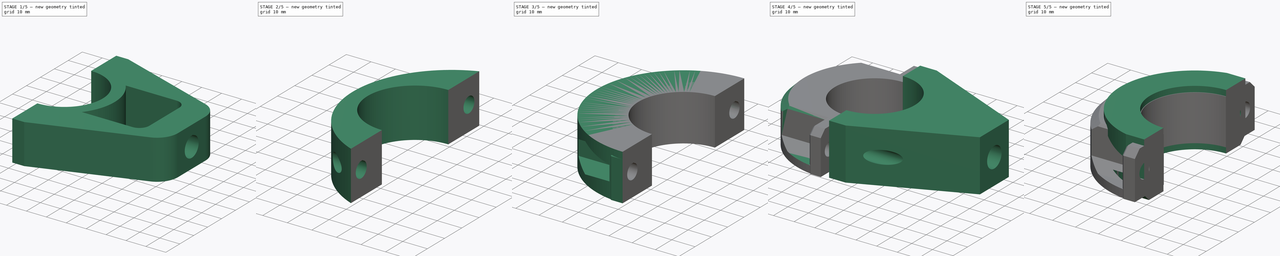
[diagram: build sequence overview — one tinted view per stage of 5, left to right]
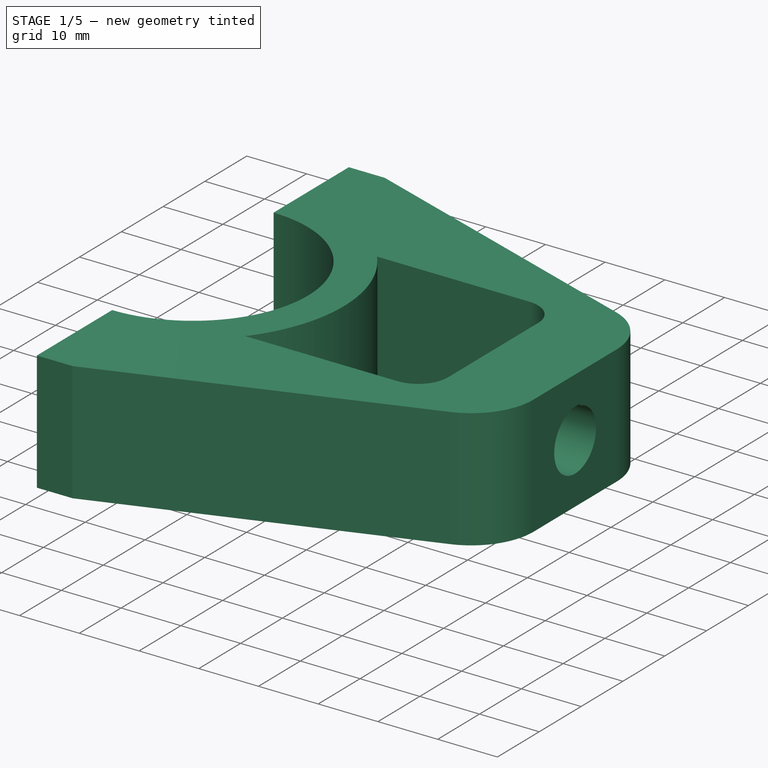
[diagram: stage 1 of 5 — iso view after this stage's code; geometry added in this stage tinted green]
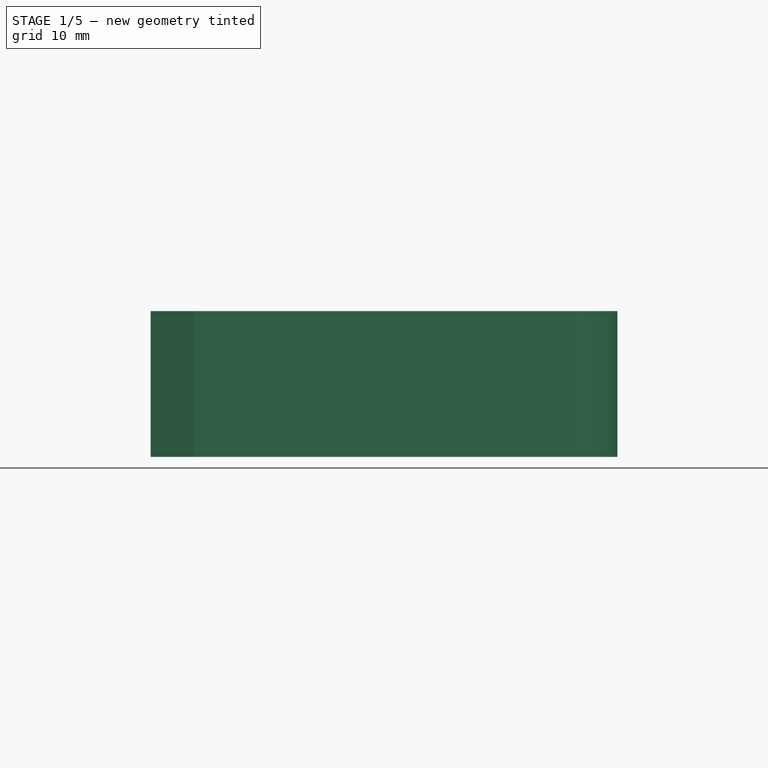
[diagram: stage 1 of 5 — front view after this stage's code; geometry added in this stage tinted green]
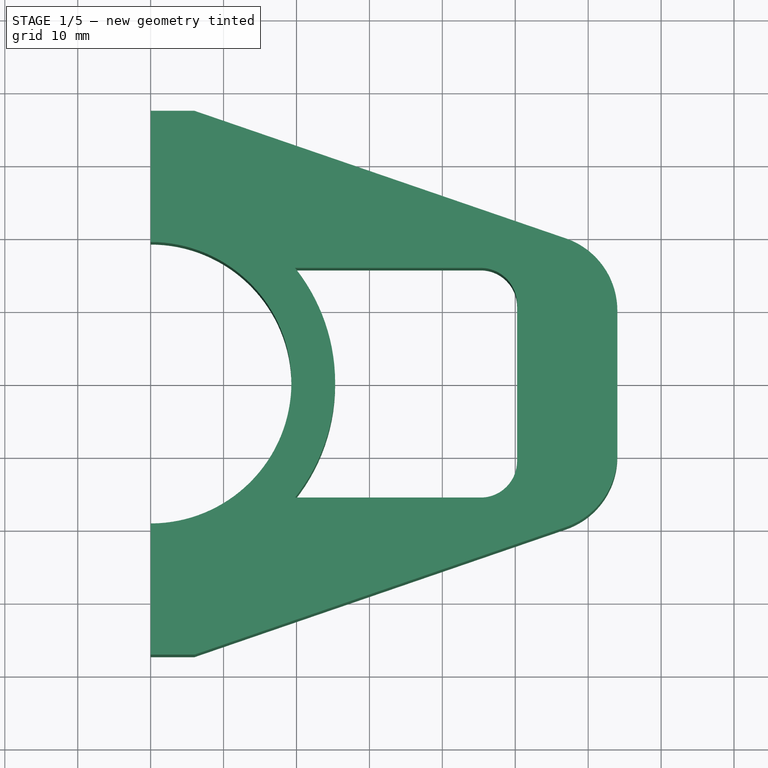
[diagram: stage 1 of 5 — top view after this stage's code; geometry added in this stage tinted green]
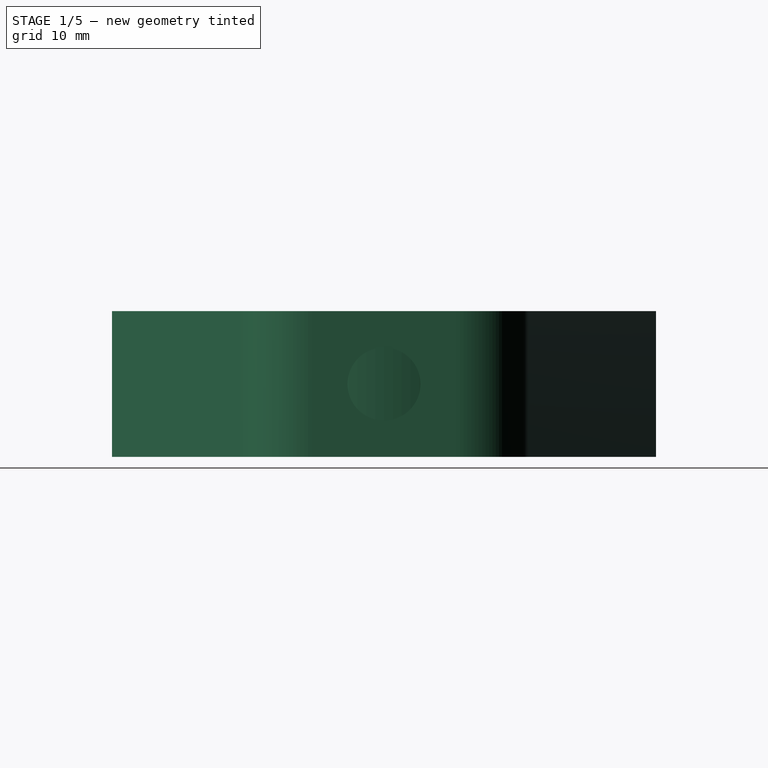
[diagram: stage 1 of 5 — right view after this stage's code; geometry added in this stage tinted green]
FCSTD DOCUMENT  (FreeCAD 0.20R29177 (Git))
Label: indicator_fork_mount
License: All rights reserved
LicenseURL: http://en.wikipedia.org/wiki/All_rights_reserved
objects: Sketcher::SketchObject×33, PartDesign::Mirrored×22, PartDesign::Pocket×21, PartDesign::Pad×10, PartDesign::Chamfer×9, PartDesign::Body×8, PartDesign::ShapeBinder×6, PartDesign::Plane×3, PartDesign::Fillet×3, PartDesign::Revolution×2, PartDesign::Boolean×1
note: 163 computed .brp shape members not serialized (recipe doc carries the construction recipe); baked Part::Feature solids carry a one-line shape summary decoded from their .brp

FEATURE [Sketcher::SketchObject] Sketch
  FullyConstrained = true
  MapMode = 5
  Support = -> [XY_Plane]
  sketch-geometry (1):
    g0: Circle CenterX=0 CenterY=0 CenterZ=0 NormalX=0 NormalY=0 NormalZ=1 AngleXU=0 Radius=19.5
  constraints (2):
    c: Coincident(g0,g-1)
    c: Diameter(g0) = 39
FEATURE [PartDesign::Pad] Pad
  Direction = (0,0,1)
  Length = 50
  Length2 = 10
  Midplane = true
  Profile = -> Sketch
  ReferenceAxis = -> Sketch [N_Axis]
  Type = 0
FEATURE [PartDesign::Body] Body  label="fork_tube"
  Group = -> [Sketch,Pad]
  Origin = -> Origin
  Tip = -> Pad
FEATURE [Sketcher::SketchObject] Sketch001
  FullyConstrained = true
  MapMode = 5
  Support = -> [XY_Plane001]
  sketch-geometry (5):
    g0: LineSegment StartX=19.4106 StartY=0 StartZ=0 EndX=22.5 EndY=0 EndZ=0
    g1: LineSegment StartX=0 StartY=-8 StartZ=0 EndX=0 EndY=63 EndZ=0
    g2: LineSegment StartX=19.4106 StartY=0 StartZ=0 EndX=18 EndY=-8 EndZ=0
    g3: LineSegment StartX=18 StartY=-8 StartZ=0 EndX=0 EndY=-8 EndZ=0
    g4: ArcOfCircle CenterX=-39.5817 CenterY=13.3458 CenterZ=0 NormalX=0 NormalY=0 NormalZ=1 AngleXU=0 Radius=63.5 StartAngle=6.07144 EndAngle=7.18098
  constraints (16):
    c: PointOnObject(g0,g-1)
    c: PointOnObject(g1,g-2)
    c: DistanceX(g-1,g0) = 22.5
    c: Coincident(g3,g2)
    c: PointOnObject(g3,g-2)
    c: Coincident(g0,g2)
    c: Horizontal(g3)
    c: DistanceY(g2,g0) = 8
    c: Horizontal(g0)
    c: Coincident(g1,g3)
    c: DistanceY(g-1,g1) = 63
    c: Angle(g2,g3) = 1.74533
    c: DistanceX(g3,g3) = 18
    c: Coincident(g4,g1)
    c: Coincident(g4,g0)
    c: Radius(g4) = 63.5
FEATURE [PartDesign::Revolution] Revolution
  Angle = 360
  Axis = (0,1,0)
  Base = (0,0,0)
  Profile = -> Sketch001
  ReferenceAxis = -> Sketch001 [V_Axis]
  Reversed = true
FEATURE [PartDesign::Body] Body001
  Group = -> [Sketch001,Revolution]
  Origin = -> Origin001
  Tip = -> Revolution
FEATURE [Sketcher::SketchObject] Sketch002
  FullyConstrained = true
  MapMode = 5
  Support = -> [XY_Plane002]
  sketch-geometry (6):
    g0: LineSegment StartX=0 StartY=18.5 StartZ=0 EndX=0 EndY=25.75 EndZ=0
    g1: LineSegment StartX=-43 StartY=18.5 StartZ=0 EndX=-43 EndY=28.4 EndZ=0
    g2: LineSegment StartX=-43 StartY=28.4 StartZ=0 EndX=-39 EndY=28.4 EndZ=0
    g3: ArcOfCircle CenterX=-15.798 CenterY=81.557 CenterZ=0 NormalX=0 NormalY=0 NormalZ=1 AngleXU=0 Radius=58 StartAngle=4.30083 EndAngle=4.98825
    g4: LineSegment StartX=-43 StartY=18.5 StartZ=0 EndX=0 EndY=18.5 EndZ=0
    g5: LineSegment StartX=0 StartY=18.5 StartZ=0 EndX=10 EndY=18.5 EndZ=0
  constraints (19):
    c: PointOnObject(g0,g-2)
    c: Vertical(g1)
    c: DistanceY(g0,g0) = 7.25
    c: DistanceY(g1,g1) = 9.9
    c: DistanceX(g1,g0) = 43
    c: Coincident(g2,g1)
    c: Horizontal(g2)
    c: Coincident(g3,g2)
    c: Coincident(g3,g0)
    c: DistanceX(g2,g2) = 4
    c: Radius(g3) = 58
    c: Coincident(g4,g1)
    c: Coincident(g4,g0)
    c: Horizontal(g4)
    c: Vertical(g0)
    c: DistanceY(g-1,g0) = 18.5
    c: Coincident(g5,g0)
    c: Horizontal(g5)
    c: DistanceX(g5,g5) = 10
FEATURE [PartDesign::Revolution] Revolution001
  Angle = 360
  Axis = (10,0,0)
  Base = (0,18.5,0)
  Profile = -> Sketch002
  ReferenceAxis = -> Sketch002 [Axis0]
FEATURE [Sketcher::SketchObject] Sketch003
  ExternalGeometry = -> [Revolution001]
  FullyConstrained = true
  MapMode = 5
  Placement = pos=(-43,0,0) rot=(0.57735,-0.57735,-0.57735;2.0944rad)
  Support = -> [Revolution001]
  sketch-geometry (1):
    g0: Circle CenterX=-18.5 CenterY=0 CenterZ=0 NormalX=0 NormalY=0 NormalZ=1 AngleXU=0 Radius=5
  constraints (2):
    c: Coincident(g0,g-3)
    c: Diameter(g0) = 10
FEATURE [PartDesign::Pad] Pad001
  BaseFeature = -> Revolution001
  Direction = (-1,0,0)
  Length = 25
  Length2 = 10
  Profile = -> Sketch003
  ReferenceAxis = -> Sketch003 [N_Axis]
  Type = 0
FEATURE [PartDesign::Boolean] Boolean
  BaseFeature = -> Pad001
  Group = -> [Body001]
  Type = 0
FEATURE [PartDesign::Body] Body004  label="fork_mount_2"
  Group = -> [ShapeBinder,Sketch011,Pad003,Mirrored004,ShapeBinder001,Sketch012,Pocket006,Mirrored005,DatumPlane,Sketch013,Pocket007,Mirrored006,Chamfer002]
  Origin = -> Origin004
  Tip = -> Chamfer002
FEATURE [PartDesign::ShapeBinder] ShapeBinder002
  Placement = pos=(0,0,25) rot=(0,0,1;0rad)
  Support = -> [Pad]
  TraceSupport = true
FEATURE [PartDesign::ShapeBinder] ShapeBinder003
  Placement = pos=(107,-18.5,0) rot=(0,0,1;0rad)
  Support = -> [Boolean]
  TraceSupport = true
FEATURE [Sketcher::SketchObject] Sketch014
  ExternalGeometry = -> [ShapeBinder002]
  FullyConstrained = true
  MapMode = 5
  Support = -> [XY_Plane005]
  sketch-geometry (5):
    g0: ArcOfCircle CenterX=0 CenterY=0 CenterZ=0 NormalX=0 NormalY=0 NormalZ=1 AngleXU=0 Radius=19.3 StartAngle=0 EndAngle=1.5708
    g1: ArcOfCircle CenterX=0 CenterY=0 CenterZ=0 NormalX=0 NormalY=0 NormalZ=1 AngleXU=0 Radius=25.3 StartAngle=0 EndAngle=1.5708
    g2: LineSegment StartX=1.2e-15 StartY=19.3 StartZ=0 EndX=1.5e-15 EndY=25.3 EndZ=0
    g3: LineSegment StartX=19.3 StartY=0 StartZ=0 EndX=25.3 EndY=0 EndZ=0
    g4: GeomPoint X=0 Y=19.5 Z=0
  constraints (14):
    c: Coincident(g0,g-1)
    c: Coincident(g1,g0)
    c: PointOnObject(g1,g-2)
    c: PointOnObject(g1,g-1)
    c: PointOnObject(g0,g-2)
    c: PointOnObject(g0,g-1)
    c: Coincident(g2,g0)
    c: Coincident(g2,g1)
    c: Coincident(g3,g0)
    c: Coincident(g3,g1)
    c: DistanceY(g2,g2) = 6
    c: PointOnObject(g4,g2)
    c: PointOnObject(g4,g-3)
    c: DistanceY(g0,g4) = 0.2
FEATURE [PartDesign::Pad] Pad004
  Direction = (0,0,1)
  Length = 20
  Length2 = 10
  Midplane = true
  Profile = -> Sketch014
  ReferenceAxis = -> Sketch014 [N_Axis]
  Refine = true
  Type = 0
FEATURE [PartDesign::Mirrored] Mirrored007
  BaseFeature = -> Pad004
  MirrorPlane = -> Sketch014 [H_Axis]
  Originals = -> [Pad004]
  Refine = true
FEATURE [Sketcher::SketchObject] Sketch015
  ExternalGeometry = -> [Mirrored007]
  FullyConstrained = true
  MapMode = 5
  Placement = pos=(0,0,10) rot=(0,0,1;0rad)
  Support = -> [Mirrored007]
  sketch-geometry (4):
    g0: LineSegment StartX=1.5e-15 StartY=25.3 StartZ=0 EndX=0 EndY=37.3 EndZ=0
    g1: LineSegment StartX=0 StartY=37.3 StartZ=0 EndX=6 EndY=37.3 EndZ=0
    g2: LineSegment StartX=6 StartY=37.3 StartZ=0 EndX=6 EndY=24.5782 EndZ=0
    g3: ArcOfCircle CenterX=0 CenterY=0 CenterZ=0 NormalX=0 NormalY=0 NormalZ=1 AngleXU=0 Radius=25.3 StartAngle=1.33136 EndAngle=1.5708
  constraints (11):
    c: Coincident(g0,g-3)
    c: PointOnObject(g0,g-2)
    c: Coincident(g1,g0)
    c: Horizontal(g1)
    c: Coincident(g2,g1)
    c: Vertical(g2)
    c: Coincident(g3,g-3)
    c: Coincident(g3,g0)
    c: DistanceX(g1,g1) = 6
    c: Coincident(g2,g3)
    c: DistanceY(g0,g0) = 12
FEATURE [PartDesign::Pad] Pad005
  BaseFeature = -> Mirrored007
  Direction = (0,0,1)
  Length = 10
  Length2 = 10
  Profile = -> Sketch015
  ReferenceAxis = -> Sketch015 [N_Axis]
  Refine = true
  Reversed = true
  Type = 3
  UpToFace = -> Mirrored007 [Face2]
FEATURE [PartDesign::Mirrored] Mirrored008
  BaseFeature = -> Pad005
  MirrorPlane = -> Sketch015 [H_Axis]
  Originals = -> [Pad005]
  Refine = true
FEATURE [Sketcher::SketchObject] Sketch016
  ExternalGeometry = -> [ShapeBinder003,Mirrored008]
  FullyConstrained = true
  MapMode = 5
  Placement = pos=(4e-16,1e-16,10) rot=(0,0,1;0rad)
  Support = -> [Mirrored008]
  expr: Constraints[7] = 31.5 / 2
  sketch-geometry (9):
    g0: LineSegment StartX=50.25 StartY=0 StartZ=0 EndX=64 EndY=0 EndZ=0
    g1: LineSegment StartX=64 StartY=0 StartZ=0 EndX=64 EndY=9.9 EndZ=0
    g2: LineSegment StartX=50.25 StartY=0 StartZ=0 EndX=50.25 EndY=15.75 EndZ=0
    g3: LineSegment StartX=6 StartY=37.3 StartZ=0 EndX=56.936 EndY=19.7969 EndZ=0
    g4: ArcOfCircle CenterX=53.5351 CenterY=9.9 CenterZ=0 NormalX=0 NormalY=0 NormalZ=1 AngleXU=0 Radius=10.4649 StartAngle=0 EndAngle=1.23981
    g5: LineSegment StartX=50.25 StartY=15.75 StartZ=0 EndX=19.7997 EndY=15.75 EndZ=0
    g6: LineSegment StartX=6 StartY=37.3 StartZ=0 EndX=6 EndY=24.5782 EndZ=0
    g7: ArcOfCircle CenterX=-4e-16 CenterY=-1e-16 CenterZ=0 NormalX=0 NormalY=0 NormalZ=1 AngleXU=0 Radius=25.3 StartAngle=0.671971 EndAngle=1.33136
    g8: LineSegment StartX=50.25 StartY=15.75 StartZ=0 EndX=52.1999 EndY=21.4243 EndZ=0
  constraints (23):
    c: PointOnObject(g0,g-1)
    c: PointOnObject(g0,g-1)
    c: Coincident(g1,g0)
    c: Coincident(g1,g-3)
    c: Vertical(g1)
    c: Coincident(g2,g0)
    c: Vertical(g2)
    c: DistanceY(g2,g2) = 15.75
    c: DistanceX(g0,g0) = 13.75
    c: Tangent(g4,g3) = 1.5708
    c: Tangent(g4,g1) = -1.5708
    c: Coincident(g3,g-5)
    c: Coincident(g5,g2)
    c: Horizontal(g5)
    c: Coincident(g6,g3)
    c: Coincident(g7,g-4)
    c: Coincident(g7,g6)
    c: Coincident(g7,g5)
    c: Coincident(g6,g-5)
    c: Coincident(g8,g2)
    c: PointOnObject(g8,g3)
    c: Perpendicular(g3,g8)
    c: Distance(g8) = 6
FEATURE [PartDesign::Pad] Pad006
  BaseFeature = -> Mirrored008
  Direction = (0,0,1)
  Length = 10
  Length2 = 10
  Profile = -> Sketch016
  ReferenceAxis = -> Sketch016 [N_Axis]
  Refine = true
  Type = 3
  UpToFace = -> Mirrored008 [Face10]
FEATURE [PartDesign::Mirrored] Mirrored009
  BaseFeature = -> Pad006
  MirrorPlane = -> Sketch016 [H_Axis]
  Originals = -> [Pad006]
  Refine = true
FEATURE [PartDesign::Fillet] Fillet
  Base = -> Mirrored009 [Edge44,Edge42]
  BaseFeature = -> Mirrored009
  Radius = 5
  Refine = true
  SupportTransform = false
  UseAllEdges = false
FEATURE [Sketcher::SketchObject] Sketch017
  FullyConstrained = true
  MapMode = 5
  Placement = pos=(64,0,0) rot=(0.57735,0.57735,0.57735;2.0944rad)
  Support = -> [Fillet]
  sketch-geometry (1):
    g0: Circle CenterX=0 CenterY=0 CenterZ=0 NormalX=0 NormalY=0 NormalZ=1 AngleXU=0 Radius=5
  constraints (2):
    c: Coincident(g0,g-1)
    c: Diameter(g0) = 10
FEATURE [PartDesign::Pocket] Pocket008
  BaseFeature = -> Fillet
  Direction = (-1,0,0)
  Length = 0
  Length2 = 5
  Profile = -> Sketch017
  ReferenceAxis = -> Sketch017 [N_Axis]
  Refine = true
  Type = 3
  UpToFace = -> Fillet [Face5]
FEATURE [Sketcher::SketchObject] Sketch018
  ExternalGeometry = -> [Pocket008]
  FullyConstrained = true
  MapMode = 5
  Placement = pos=(64,0,0) rot=(0.57735,0.57735,0.57735;2.0944rad)
  Support = -> [Pocket008]
  sketch-geometry (4):
    g0: LineSegment StartX=-1.25 StartY=4.84123 StartZ=0 EndX=-0.95 EndY=5.14123 EndZ=0
    g1: LineSegment StartX=-0.95 StartY=5.14123 StartZ=0 EndX=0.95 EndY=5.14123 EndZ=0
    g2: LineSegment StartX=0.95 StartY=5.14123 StartZ=0 EndX=1.25 EndY=4.84123 EndZ=0
    g3: LineSegment StartX=1.25 StartY=4.84123 StartZ=0 EndX=-1.25 EndY=4.84123 EndZ=0
  constraints (12):
    c: PointOnObject(g0,g-3)
    c: Coincident(g1,g0)
    c: Horizontal(g1)
    c: Coincident(g2,g1)
    c: PointOnObject(g2,g-3)
    c: Coincident(g3,g2)
    c: Coincident(g3,g0)
    c: Horizontal(g3)
    c: Angle(g2,g3) = 0.785398
    c: Equal(g0,g2)
    c: DistanceX(g3,g3) = 2.5
    c: DistanceY(g0,g0) = 0.3
FEATURE [PartDesign::Pocket] Pocket009
  BaseFeature = -> Pocket008
  Direction = (-1,0,0)
  Length = 0
  Length2 = 5
  Profile = -> Sketch018
  ReferenceAxis = -> Sketch018 [N_Axis]
  Refine = true
  Type = 3
  UpToFace = -> Pocket008 [Face5]
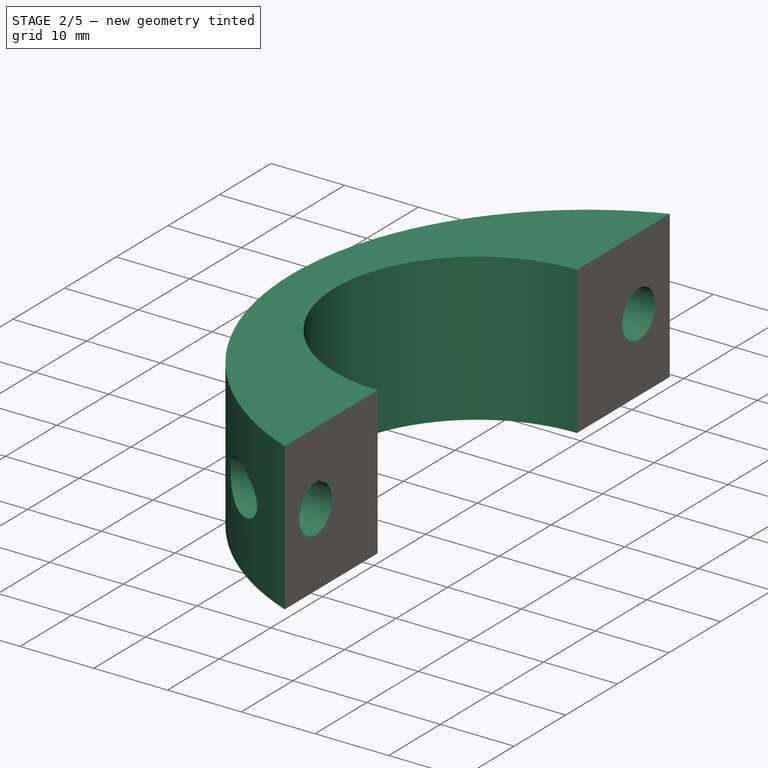
[diagram: stage 2 of 5 — iso view after this stage's code; geometry added in this stage tinted green]
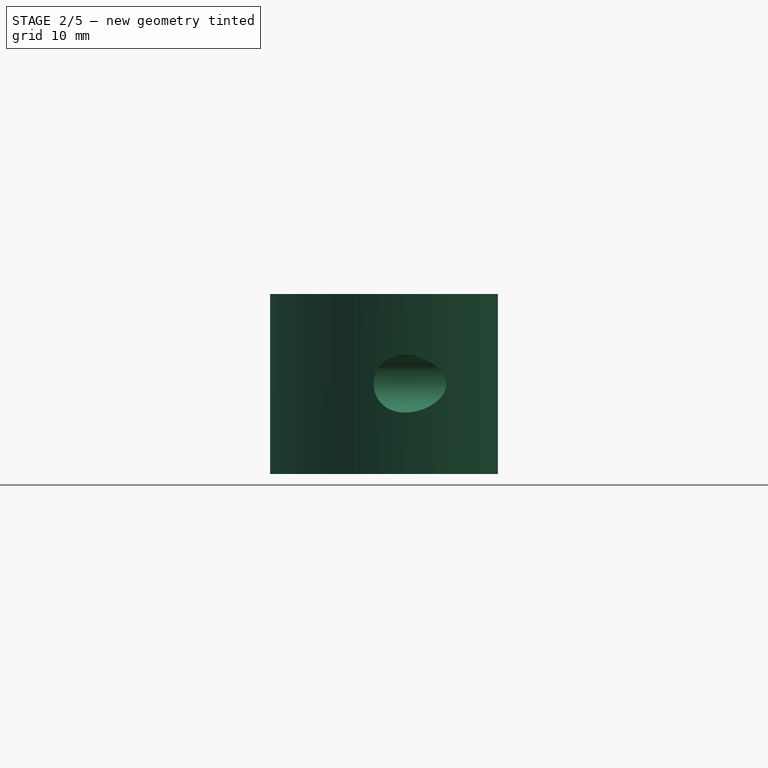
[diagram: stage 2 of 5 — front view after this stage's code; geometry added in this stage tinted green]
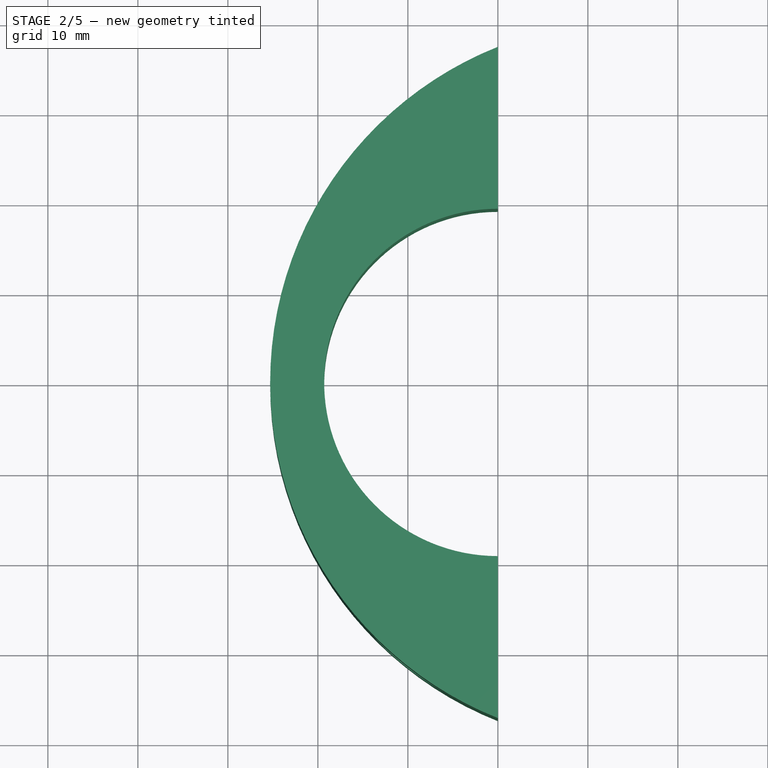
[diagram: stage 2 of 5 — top view after this stage's code; geometry added in this stage tinted green]
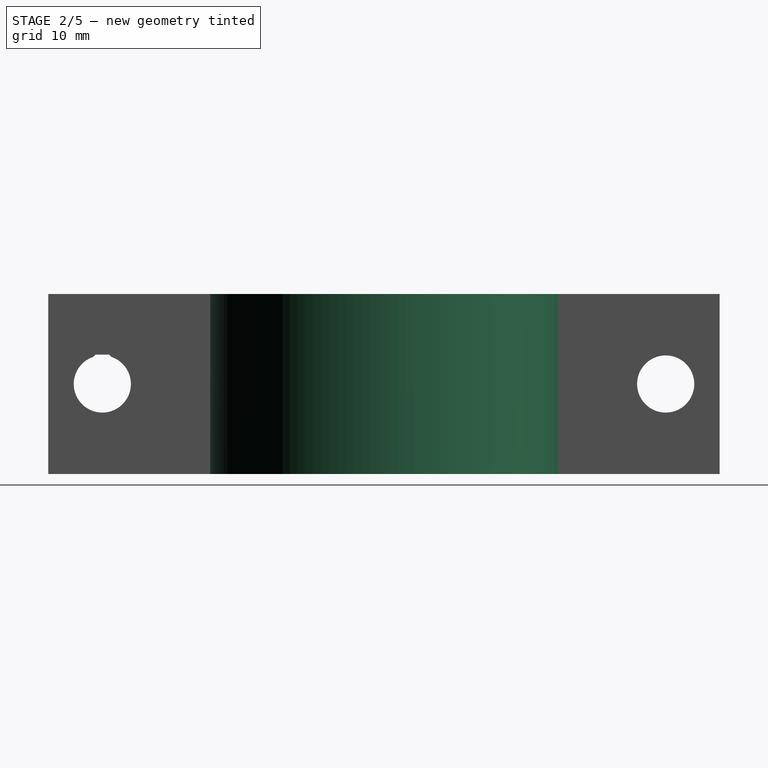
[diagram: stage 2 of 5 — right view after this stage's code; geometry added in this stage tinted green]
FEATURE [Sketcher::SketchObject] Sketch019
  ExternalGeometry = -> [Pocket009]
  FullyConstrained = true
  MapMode = 5
  Placement = pos=(2.8e-15,0,0) rot=(-0.57735,0.57735,0.57735;4.18879rad)
  Support = -> [Pocket009]
  sketch-geometry (1):
    g0: Circle CenterX=-31.3 CenterY=0 CenterZ=0 NormalX=0 NormalY=0 NormalZ=1 AngleXU=0 Radius=3.175
  constraints (3):
    c: PointOnObject(g0,g-1)
    c: Diameter(g0) = 6.35
    c: DistanceX(g-3,g0) = 6
FEATURE [PartDesign::Pocket] Pocket010
  BaseFeature = -> Pocket009
  Direction = (1,0,0)
  Length = 5
  Length2 = 5
  Profile = -> Sketch019
  ReferenceAxis = -> Sketch019 [N_Axis]
  Refine = true
  Type = 1
FEATURE [PartDesign::Mirrored] Mirrored010
  BaseFeature = -> Pocket010
  MirrorPlane = -> Sketch019 [V_Axis]
  Originals = -> [Pocket010]
  Refine = true
FEATURE [Sketcher::SketchObject] Sketch020
  ExternalGeometry = -> [Mirrored010]
  FullyConstrained = true
  MapMode = 5
  Placement = pos=(2.8e-15,0,0) rot=(0.57735,-0.57735,-0.57735;2.0944rad)
  Support = -> [Mirrored010]
  sketch-geometry (4):
    g0: LineSegment StartX=-32.3 StartY=3.01341 StartZ=0 EndX=-32.05 EndY=3.26341 EndZ=0
    g1: LineSegment StartX=-32.05 StartY=3.26341 StartZ=0 EndX=-30.55 EndY=3.26341 EndZ=0
    g2: LineSegment StartX=-30.55 StartY=3.26341 StartZ=0 EndX=-30.3 EndY=3.01341 EndZ=0
    g3: LineSegment StartX=-30.3 StartY=3.01341 StartZ=0 EndX=-32.3 EndY=3.01341 EndZ=0
  constraints (12):
    c: PointOnObject(g0,g-3)
    c: Coincident(g1,g0)
    c: Horizontal(g1)
    c: Coincident(g2,g1)
    c: PointOnObject(g2,g-3)
    c: Coincident(g3,g2)
    c: Coincident(g3,g0)
    c: Horizontal(g3)
    c: Angle(g2,g3) = 0.785398
    c: Equal(g0,g2)
    c: DistanceX(g3,g3) = 2
    c: DistanceY(g0,g0) = 0.25
FEATURE [PartDesign::Pocket] Pocket011
  BaseFeature = -> Mirrored010
  Direction = (1,0,0)
  Length = 5
  Length2 = 5
  Profile = -> Sketch020
  ReferenceAxis = -> Sketch020 [N_Axis]
  Refine = true
  Type = 1
FEATURE [PartDesign::Mirrored] Mirrored011
  BaseFeature = -> Pocket011
  MirrorPlane = -> Sketch020 [V_Axis]
  Originals = -> [Pocket011]
  Refine = true
FEATURE [Sketcher::SketchObject] Sketch021
  ExternalGeometry = -> [Mirrored011]
  FullyConstrained = true
  MapMode = 5
  Placement = pos=(64,0,0) rot=(0.57735,0.57735,0.57735;2.0944rad)
  Support = -> [Mirrored011]
  sketch-geometry (6):
    g0: ArcOfCircle CenterX=-31.3 CenterY=0 CenterZ=0 NormalX=0 NormalY=0 NormalZ=1 AngleXU=0 Radius=6 StartAngle=4.71239 EndAngle=6.28319
    g1: LineSegment StartX=-31.3 StartY=-6 StartZ=0 EndX=-37.3 EndY=-6 EndZ=0
    g2: LineSegment StartX=-37.3 StartY=-6 StartZ=0 EndX=-37.3 EndY=10 EndZ=0
    g3: LineSegment StartX=-37.3 StartY=10 StartZ=0 EndX=-25.3 EndY=10 EndZ=0
    g4: LineSegment StartX=-25.3 StartY=10 StartZ=0 EndX=-25.3 EndY=-1.8e-15 EndZ=0
    g5: LineSegment StartX=-31.3 StartY=-6 StartZ=0 EndX=-31.3 EndY=0 EndZ=0
  constraints (17):
    c: Coincident(g0,g-3)
    c: Diameter(g0) = 12
    c: PointOnObject(g1,g-4)
    c: Coincident(g2,g1)
    c: Coincident(g3,g2)
    c: Coincident(g4,g3)
    c: PointOnObject(g4,g-1)
    c: PointOnObject(g3,g-5)
    c: Horizontal(g3)
    c: Horizontal(g1)
    c: Vertical(g2)
    c: Vertical(g4)
    c: Coincident(g5,g1)
    c: Coincident(g5,g0)
    c: Vertical(g5)
    c: Coincident(g0,g1)
    c: Coincident(g0,g4)
FEATURE [PartDesign::Pocket] Pocket012
  BaseFeature = -> Mirrored011
  Direction = (-1,0,0)
  Length = 0
  Length2 = 5
  Offset = -6
  Profile = -> Sketch021
  ReferenceAxis = -> Sketch021 [N_Axis]
  Refine = true
  Type = 3
  UpToFace = -> Mirrored011 [Face9]
FEATURE [PartDesign::Mirrored] Mirrored012
  BaseFeature = -> Pocket012
  MirrorPlane = -> Sketch021 [V_Axis]
  Originals = -> [Pocket012]
  Refine = true
FEATURE [PartDesign::Chamfer] Chamfer003
  Angle = 45
  Base = -> Mirrored012 [Edge13,Edge3]
  BaseFeature = -> Mirrored012
  ChamferType = 0
  FlipDirection = false
  Refine = true
  Size = 3
  Size2 = 1
  SupportTransform = false
  UseAllEdges = false
FEATURE [PartDesign::Fillet] Fillet001
  Base = -> Chamfer003 [Edge92,Edge88]
  BaseFeature = -> Chamfer003
  Radius = 2
  Refine = true
  SupportTransform = false
  UseAllEdges = false
FEATURE [PartDesign::Chamfer] Chamfer004
  Angle = 45
  Base = -> Fillet001 [Edge88,Edge85,Edge20,Edge22,Edge24,Edge23,Edge21,Edge19,Edge17,Edge15,Edge13,Edge57,Edge61,Edge8,Edge6,Edge4,Edge2,Edge1,Edge3,Edge5,Edge7,Edge9]
  BaseFeature = -> Fillet001
  ChamferType = 0
  FlipDirection = false
  Refine = true
  Size = 1
  Size2 = 1
  SupportTransform = false
  UseAllEdges = false
FEATURE [PartDesign::Body] Body006  label="fork_mount_v2_2"
  Group = -> [ShapeBinder004,Sketch022,Pad007,Sketch023,Pocket013,Mirrored013,Sketch024,Pocket014,Mirrored014,DatumPlane001,Sketch025,Pocket015,Mirrored015,Chamfer005,Sketch026,Pocket016,Mirrored016,Sketch027,Pocket017,Mirrored017,Chamfer006]
  Origin = -> Origin006
  Tip = -> Chamfer006
FEATURE [PartDesign::ShapeBinder] ShapeBinder005
  Support = -> [Chamfer004]
  TraceSupport = true
FEATURE [Sketcher::SketchObject] Sketch028
  ExternalGeometry = -> [ShapeBinder005]
  FullyConstrained = true
  MapMode = 5
  Support = -> [XY_Plane007]
  sketch-geometry (5):
    g0: ArcOfCircle CenterX=0 CenterY=0 CenterZ=0 NormalX=0 NormalY=0 NormalZ=1 AngleXU=0 Radius=19.3 StartAngle=1.5708 EndAngle=4.71239
    g1: ArcOfCircle CenterX=14.8458 CenterY=0 CenterZ=0 NormalX=0 NormalY=0 NormalZ=1 AngleXU=0 Radius=40.1458 StartAngle=1.94959 EndAngle=4.3336
    g2: LineSegment StartX=0 StartY=37.3 StartZ=0 EndX=1.2e-15 EndY=19.3 EndZ=0
    g3: LineSegment StartX=-3.5e-15 StartY=-19.3 StartZ=0 EndX=2.3e-15 EndY=-37.3 EndZ=0
    g4: LineSegment StartX=-19.3 StartY=0 StartZ=0 EndX=-25.3 EndY=0 EndZ=0
  constraints (15):
    c: Coincident(g0,g-1)
    c: Coincident(g0,g-3)
    c: PointOnObject(g0,g-2)
    c: PointOnObject(g1,g-1)
    c: Coincident(g1,g-3)
    c: PointOnObject(g1,g-2)
    c: Coincident(g2,g1)
    c: Coincident(g2,g0)
    c: Coincident(g3,g0)
    c: Coincident(g3,g1)
    c: PointOnObject(g4,g0)
    c: PointOnObject(g4,g1)
    c: PointOnObject(g4,g-1)
    c: Horizontal(g4)
    c: DistanceX(g4,g4) = 6
FEATURE [PartDesign::Pad] Pad008
  Direction = (0,0,1)
  Length = 20
  Length2 = 10
  Midplane = true
  Profile = -> Sketch028
  ReferenceAxis = -> Sketch028 [N_Axis]
  Refine = true
  Type = 0
FEATURE [Sketcher::SketchObject] Sketch029
  ExternalGeometry = -> [ShapeBinder005]
  FullyConstrained = true
  MapMode = 5
  Placement = pos=(-9.7e-15,0,0) rot=(0.57735,0.57735,0.57735;2.0944rad)
  Support = -> [Pad008]
  sketch-geometry (1):
    g0: Circle CenterX=-31.3 CenterY=0 CenterZ=0 NormalX=0 NormalY=0 NormalZ=1 AngleXU=0 Radius=3.175
  constraints (2):
    c: Coincident(g0,g-3)
    c: Equal(g-3,g0)
FEATURE [PartDesign::Pocket] Pocket018
  BaseFeature = -> Pad008
  Direction = (-1,-1e-16,-1e-16)
  Length = 5
  Length2 = 5
  Profile = -> Sketch029
  ReferenceAxis = -> Sketch029 [N_Axis]
  Refine = true
  Type = 1
FEATURE [PartDesign::Mirrored] Mirrored018
  BaseFeature = -> Pocket018
  MirrorPlane = -> Sketch029 [V_Axis]
  Originals = -> [Pocket018]
  Refine = true
FEATURE [Sketcher::SketchObject] Sketch030
  ExternalGeometry = -> [ShapeBinder005,Mirrored018]
  FullyConstrained = true
  MapMode = 5
  Placement = pos=(-9.7e-15,0,0) rot=(0.57735,0.57735,0.57735;2.0944rad)
  Support = -> [Mirrored018]
  sketch-geometry (4):
    g0: LineSegment StartX=-32.3 StartY=3.01341 StartZ=0 EndX=-30.3 EndY=3.01341 EndZ=0
    g1: LineSegment StartX=-30.3 StartY=3.01341 StartZ=0 EndX=-30.55 EndY=3.26341 EndZ=0
    g2: LineSegment StartX=-30.55 StartY=3.26341 StartZ=0 EndX=-32.05 EndY=3.26341 EndZ=0
    g3: LineSegment StartX=-32.05 StartY=3.26341 StartZ=0 EndX=-32.3 EndY=3.01341 EndZ=0
  constraints (8):
    c: Coincident(g0,g-4)
    c: Coincident(g0,g-3)
    c: Coincident(g1,g0)
    c: Coincident(g1,g-3)
    c: Coincident(g2,g1)
    c: Coincident(g2,g-4)
    c: Coincident(g3,g2)
    c: Coincident(g3,g0)
FEATURE [PartDesign::Pocket] Pocket019
  BaseFeature = -> Mirrored018
  Direction = (-1,-1e-16,-1e-16)
  Length = 5
  Length2 = 5
  Profile = -> Sketch030
  ReferenceAxis = -> Sketch030 [N_Axis]
  Refine = true
  Type = 1
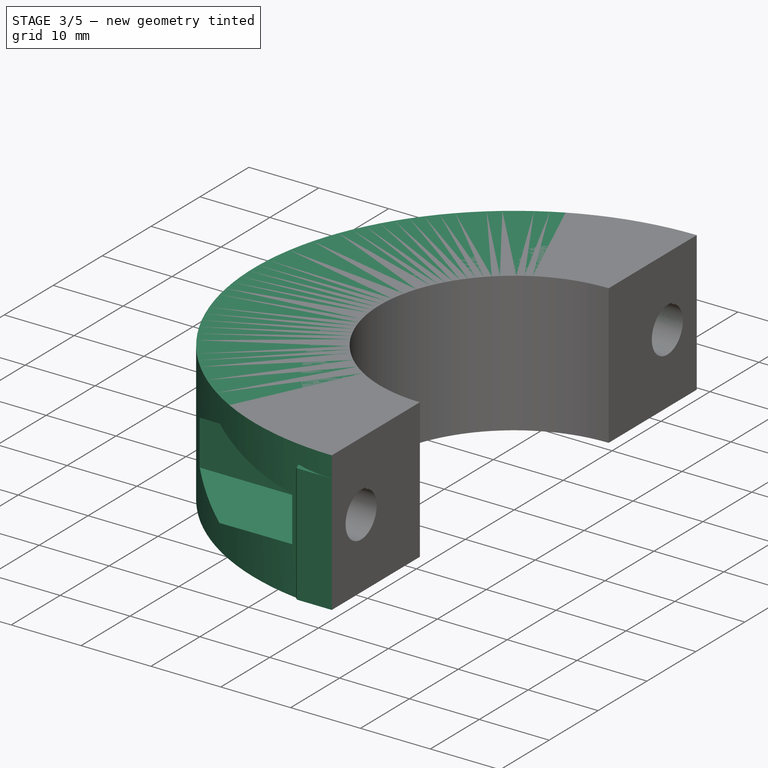
[diagram: stage 3 of 5 — iso view after this stage's code; geometry added in this stage tinted green]
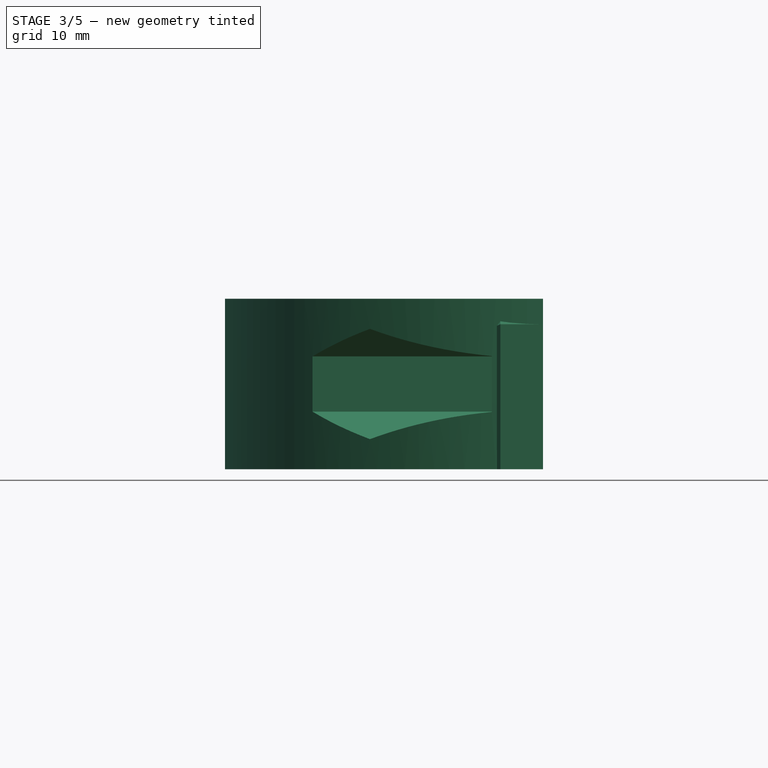
[diagram: stage 3 of 5 — front view after this stage's code; geometry added in this stage tinted green]
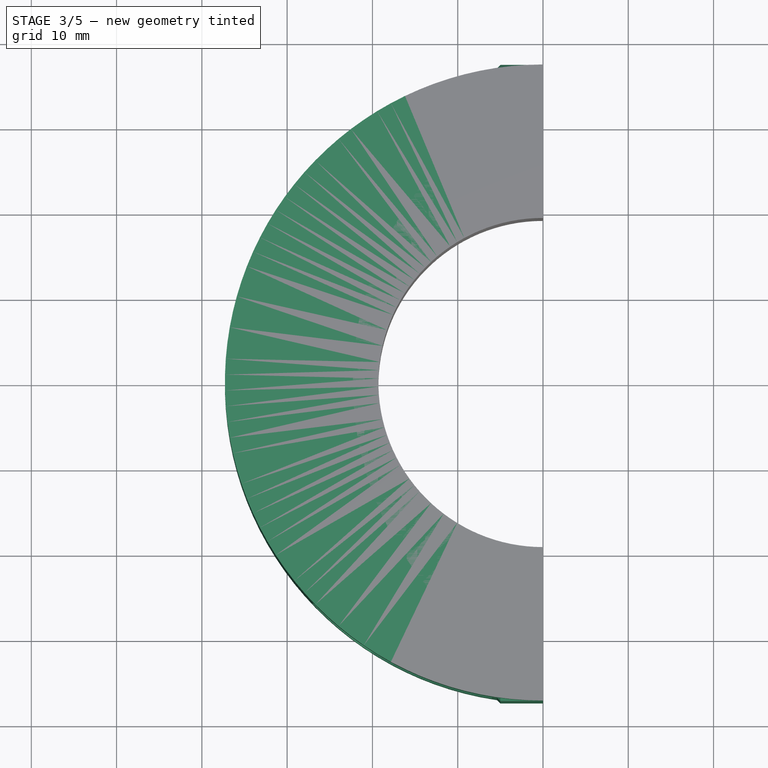
[diagram: stage 3 of 5 — top view after this stage's code; geometry added in this stage tinted green]
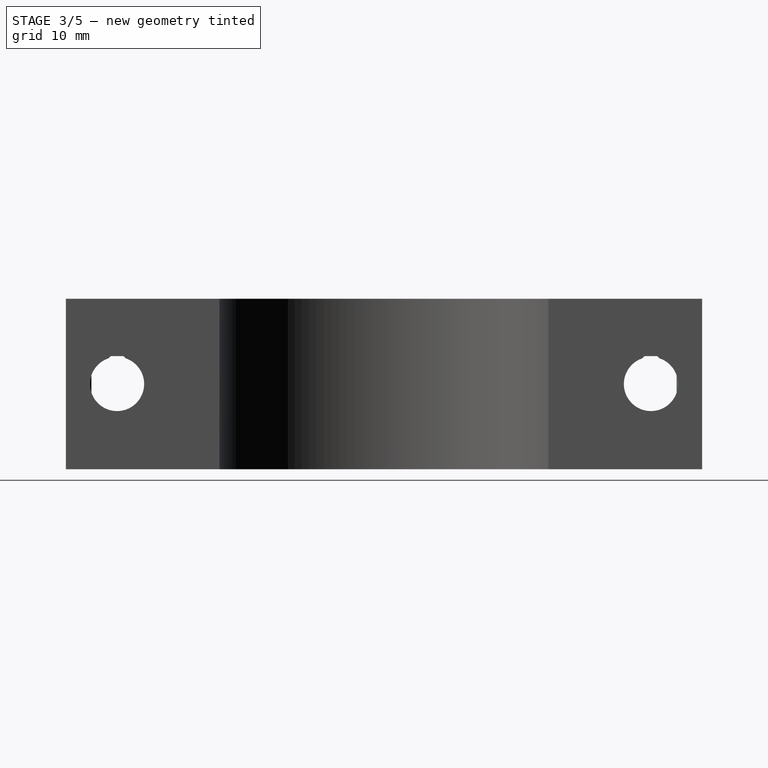
[diagram: stage 3 of 5 — right view after this stage's code; geometry added in this stage tinted green]
FEATURE [PartDesign::Body] Body005  label="fork_mount_v2_1"
  Group = -> [ShapeBinder002,ShapeBinder003,Sketch014,Pad004,Mirrored007,Sketch015,Pad005,Mirrored008,Sketch016,Pad006,Mirrored009,Fillet,Sketch017,Pocket008,Sketch018,Pocket009,Sketch019,Pocket010,Mirrored010,Sketch020,Pocket011,Mirrored011,Sketch021,Pocket012,Mirrored012,Chamfer003,Fillet001,Chamfer004]
  Origin = -> Origin005
  Tip = -> Chamfer004
FEATURE [PartDesign::ShapeBinder] ShapeBinder004
  Support = -> [Chamfer004]
  TraceSupport = true
FEATURE [Sketcher::SketchObject] Sketch022
  ExternalGeometry = -> [ShapeBinder004]
  FullyConstrained = true
  MapMode = 5
  Support = -> [XY_Plane006]
  sketch-geometry (4):
    g0: ArcOfCircle CenterX=0 CenterY=0 CenterZ=0 NormalX=0 NormalY=0 NormalZ=1 AngleXU=0 Radius=19.3 StartAngle=1.5708 EndAngle=4.71239
    g1: ArcOfCircle CenterX=0 CenterY=0 CenterZ=0 NormalX=0 NormalY=0 NormalZ=1 AngleXU=0 Radius=37.3 StartAngle=1.5708 EndAngle=4.71239
    g2: LineSegment StartX=2.3e-15 StartY=37.3 StartZ=0 EndX=1.2e-15 EndY=19.3 EndZ=0
    g3: LineSegment StartX=1.2e-15 StartY=-19.3 StartZ=0 EndX=-6.9e-15 EndY=-37.3 EndZ=0
  constraints (10):
    c: Coincident(g0,g-1)
    c: Coincident(g0,g-3)
    c: PointOnObject(g0,g-2)
    c: Coincident(g1,g0)
    c: Coincident(g1,g-4)
    c: PointOnObject(g1,g-2)
    c: Coincident(g2,g1)
    c: Coincident(g2,g0)
    c: Coincident(g3,g0)
    c: Coincident(g3,g1)
FEATURE [PartDesign::Pad] Pad007
  Direction = (0,0,1)
  Length = 20
  Length2 = 10
  Midplane = true
  Profile = -> Sketch022
  ReferenceAxis = -> Sketch022 [N_Axis]
  Refine = true
  Type = 0
FEATURE [Sketcher::SketchObject] Sketch023
  ExternalGeometry = -> [ShapeBinder004]
  FullyConstrained = true
  MapMode = 5
  Placement = pos=(9.9e-15,0,0) rot=(0.57735,0.57735,0.57735;2.0944rad)
  Support = -> [Pad007]
  sketch-geometry (1):
    g0: Circle CenterX=-31.3 CenterY=0 CenterZ=0 NormalX=0 NormalY=0 NormalZ=1 AngleXU=0 Radius=3.175
  constraints (2):
    c: Coincident(g0,g-3)
    c: Equal(g-3,g0)
FEATURE [PartDesign::Pocket] Pocket013
  BaseFeature = -> Pad007
  Direction = (-1,4e-16,0)
  Length = 5
  Length2 = 5
  Profile = -> Sketch023
  ReferenceAxis = -> Sketch023 [N_Axis]
  Refine = true
  Type = 1
FEATURE [PartDesign::Mirrored] Mirrored013
  BaseFeature = -> Pocket013
  MirrorPlane = -> Sketch023 [V_Axis]
  Originals = -> [Pocket013]
  Refine = true
FEATURE [Sketcher::SketchObject] Sketch024
  ExternalGeometry = -> [ShapeBinder004,Mirrored013]
  FullyConstrained = true
  MapMode = 5
  Placement = pos=(9.9e-15,0,0) rot=(0.57735,0.57735,0.57735;2.0944rad)
  Support = -> [Mirrored013]
  sketch-geometry (4):
    g0: LineSegment StartX=-32.3 StartY=3.01341 StartZ=0 EndX=-30.3 EndY=3.01341 EndZ=0
    g1: LineSegment StartX=-30.3 StartY=3.01341 StartZ=0 EndX=-30.55 EndY=3.26341 EndZ=0
    g2: LineSegment StartX=-30.55 StartY=3.26341 StartZ=0 EndX=-32.05 EndY=3.26341 EndZ=0
    g3: LineSegment StartX=-32.05 StartY=3.26341 StartZ=0 EndX=-32.3 EndY=3.01341 EndZ=0
  constraints (8):
    c: Coincident(g0,g-4)
    c: Coincident(g0,g-3)
    c: Coincident(g1,g0)
    c: Coincident(g1,g-3)
    c: Coincident(g2,g1)
    c: Coincident(g2,g-4)
    c: Coincident(g3,g2)
    c: Coincident(g3,g0)
FEATURE [PartDesign::Pocket] Pocket014
  BaseFeature = -> Mirrored013
  Direction = (-1,4e-16,0)
  Length = 5
  Length2 = 5
  Profile = -> Sketch024
  ReferenceAxis = -> Sketch024 [N_Axis]
  Refine = true
  Type = 1
FEATURE [PartDesign::Mirrored] Mirrored014
  BaseFeature = -> Pocket014
  MirrorPlane = -> Sketch024 [V_Axis]
  Originals = -> [Pocket014]
  Refine = true
FEATURE [PartDesign::Plane] DatumPlane001
  AttachmentOffset = pos=(0,0,-38) rot=(0,0,1;0rad)
  Length = 86.8147
  MapMode = 5
  Placement = pos=(-38,8.4e-15,-8.4e-15) rot=(0.57735,0.57735,0.57735;2.0944rad)
  ResizeMode = 0
  Support = -> [YZ_Plane006]
  Width = 62.2147
FEATURE [Sketcher::SketchObject] Sketch025
  ExternalGeometry = -> [Mirrored014]
  FullyConstrained = true
  MapMode = 5
  Placement = pos=(-38,8.4e-15,-8.4e-15) rot=(-0.57735,0.57735,0.57735;4.18879rad)
  Support = -> [DatumPlane001]
  sketch-geometry (7):
    g0: LineSegment StartX=31.3 StartY=6.46632 StartZ=0 EndX=25.7 EndY=3.23316 EndZ=0
    g1: LineSegment StartX=25.7 StartY=3.23316 StartZ=0 EndX=25.7 EndY=-3.23316 EndZ=0
    g2: LineSegment StartX=25.7 StartY=-3.23316 StartZ=0 EndX=31.3 EndY=-6.46632 EndZ=0
    g3: LineSegment StartX=31.3 StartY=-6.46632 StartZ=0 EndX=36.9 EndY=-3.23316 EndZ=0
    g4: LineSegment StartX=36.9 StartY=-3.23316 StartZ=0 EndX=36.9 EndY=3.23316 EndZ=0
    g5: LineSegment StartX=36.9 StartY=3.23316 StartZ=0 EndX=31.3 EndY=6.46632 EndZ=0
    g6: Circle CenterX=31.3 CenterY=4.2e-15 CenterZ=0 NormalX=0 NormalY=0 NormalZ=1 AngleXU=0 Radius=6.46632
  constraints (16):
    c: Coincident(g0,g1)
    c: Coincident(g1,g2)
    c: Coincident(g2,g3)
    c: Coincident(g3,g4)
    c: Coincident(g4,g5)
    c: Coincident(g5,g0)
    c: Equal(g0, g1-g5) x5
    c: PointOnObject(g0,g6)
    c: PointOnObject(g1,g6)
    c: PointOnObject(g2,g6)
    c: PointOnObject(g3,g6)
    c: PointOnObject(g4,g6)
    c: PointOnObject(g5,g6)
    c: Coincident(g6,g-3)
    c: Vertical(g4)
    c: DistanceX(g0,g4) = 11.2
FEATURE [PartDesign::Pocket] Pocket015
  BaseFeature = -> Mirrored014
  Direction = (1,-1e-16,1e-16)
  Length = 0
  Length2 = 5
  Offset = -6
  Profile = -> Sketch025
  ReferenceAxis = -> Sketch025 [N_Axis]
  Refine = true
  Type = 3
  UpToFace = -> Mirrored014 [Face9]
FEATURE [PartDesign::Mirrored] Mirrored019
  BaseFeature = -> Pocket019
  MirrorPlane = -> Sketch030 [V_Axis]
  Originals = -> [Pocket019]
  Refine = true
FEATURE [PartDesign::Plane] DatumPlane002
  AttachmentOffset = pos=(0,0,-25) rot=(0,0,1;0rad)
  Length = 86.8147
  MapMode = 5
  Placement = pos=(-25,-2.8e-15,-2.8e-15) rot=(0.57735,0.57735,0.57735;2.0944rad)
  ResizeMode = 0
  Support = -> [Mirrored019]
  Width = 62.2147
FEATURE [Sketcher::SketchObject] Sketch031
  ExternalGeometry = -> [Mirrored019]
  FullyConstrained = true
  MapMode = 5
  Placement = pos=(-25,-2.8e-15,-2.8e-15) rot=(0.57735,-0.57735,-0.57735;2.0944rad)
  Support = -> [DatumPlane002]
  sketch-geometry (12):
    g0: LineSegment StartX=36.9 StartY=3.23316 StartZ=0 EndX=31.3 EndY=6.46632 EndZ=0
    g1: LineSegment StartX=31.3 StartY=6.46632 StartZ=0 EndX=25.7 EndY=3.23316 EndZ=0
    g2: LineSegment StartX=25.7 StartY=3.23316 StartZ=0 EndX=25.7 EndY=-3.23316 EndZ=0
    g3: LineSegment StartX=25.7 StartY=-3.23316 StartZ=0 EndX=31.3 EndY=-6.46632 EndZ=0
    g4: LineSegment StartX=31.3 StartY=-6.46632 StartZ=0 EndX=36.9 EndY=-3.23316 EndZ=0
    g5: LineSegment StartX=36.9 StartY=-3.23316 StartZ=0 EndX=36.9 EndY=3.23316 EndZ=0
    g6: Circle CenterX=31.3 CenterY=-6.3e-15 CenterZ=0 NormalX=0 NormalY=0 NormalZ=1 AngleXU=0 Radius=6.46632
    g7: LineSegment StartX=25.7 StartY=-3.23316 StartZ=0 EndX=25.7 EndY=10 EndZ=0
    g8: LineSegment StartX=25.7 StartY=10 StartZ=0 EndX=37.3 EndY=10 EndZ=0
    g9: LineSegment StartX=37.3 StartY=10 StartZ=0 EndX=37.3 EndY=-6.46632 EndZ=0
    g10: LineSegment StartX=31.3 StartY=-6.46632 StartZ=0 EndX=37.3 EndY=-6.46632 EndZ=0
    g11: LineSegment StartX=31.3 StartY=-6.46632 StartZ=0 EndX=25.7 EndY=-3.23316 EndZ=0
  constraints (28):
    c: Coincident(g0,g1)
    c: Coincident(g1,g2)
    c: Coincident(g2,g3)
    c: Coincident(g3,g4)
    c: Coincident(g4,g5)
    c: Coincident(g5,g0)
    c: Equal(g0, g1-g5) x5
    c: PointOnObject(g0,g6)
    c: PointOnObject(g1,g6)
    c: PointOnObject(g2,g6)
    c: PointOnObject(g3,g6)
    c: PointOnObject(g4,g6)
    c: PointOnObject(g5,g6)
    c: Coincident(g6,g-3)
    c: Vertical(g5)
    c: DistanceX(g1,g0) = 11.2
    c: Coincident(g7,g2)
    c: PointOnObject(g7,g-4)
    c: Vertical(g7)
    c: Coincident(g8,g7)
    c: Coincident(g9,g8)
    c: Coincident(g10,g3)
    c: PointOnObject(g10,g-5)
    c: Horizontal(g10)
    c: Coincident(g11,g10)
    c: Coincident(g11,g7)
    c: Coincident(g9,g10)
    c: Coincident(g8,g-5)
FEATURE [PartDesign::Pocket] Pocket020
  BaseFeature = -> Mirrored019
  Direction = (1,2e-16,2e-16)
  Length = 0
  Length2 = 5
  Offset = -6
  Profile = -> Sketch031
  ReferenceAxis = -> Sketch031 [N_Axis]
  Refine = true
  Type = 3
  UpToFace = -> Mirrored019 [Face9]
FEATURE [PartDesign::Mirrored] Mirrored020
  BaseFeature = -> Pocket020
  MirrorPlane = -> Sketch031 [V_Axis]
  Originals = -> [Pocket020]
  Refine = true
FEATURE [Sketcher::SketchObject] Sketch032
  ExternalGeometry = -> [Mirrored020]
  FullyConstrained = true
  MapMode = 5
  Placement = pos=(0,0,10) rot=(0,0,1;0rad)
  Support = -> [Mirrored020]
  sketch-geometry (3):
    g0: LineSegment StartX=0 StartY=-37.3 StartZ=0 EndX=-6 EndY=-37.3 EndZ=0
    g1: LineSegment StartX=-6 StartY=-37.3 StartZ=0 EndX=-6 EndY=-34.3095 EndZ=0
    g2: LineSegment StartX=-6 StartY=-34.3095 StartZ=0 EndX=0 EndY=-37.3 EndZ=0
  constraints (7):
    c: Coincident(g0,g-3)
    c: Horizontal(g0)
    c: Coincident(g1,g0)
    c: Coincident(g1,g-3)
    c: Coincident(g2,g1)
    c: Coincident(g2,g0)
    c: Vertical(g1)
FEATURE [PartDesign::Pad] Pad009
  BaseFeature = -> Mirrored020
  Direction = (0,0,1)
  Length = 10
  Length2 = 10
  Profile = -> Sketch032
  ReferenceAxis = -> Sketch032 [N_Axis]
  Refine = true
  Type = 3
  UpToFace = -> Mirrored020 [Face3]
FEATURE [PartDesign::Mirrored] Mirrored021
  BaseFeature = -> Pad009
  MirrorPlane = -> Sketch032 [H_Axis]
  Originals = -> [Pad009]
  Refine = true
FEATURE [PartDesign::Chamfer] Chamfer007
  Angle = 45
  Base = -> Mirrored021 [Edge56,Edge39,Edge10]
  BaseFeature = -> Mirrored021
  ChamferType = 0
  FlipDirection = false
  Refine = true
  Size = 3
  Size2 = 1
  SupportTransform = false
  UseAllEdges = false
FEATURE [PartDesign::Chamfer] Chamfer008
  Angle = 45
  Base = -> Chamfer007 [Edge61,Edge63,Edge28,Edge29,Edge75,Edge46,Edge49,Edge73,Edge25,Edge23,Edge15,Edge11]
  BaseFeature = -> Chamfer007
  ChamferType = 0
  FlipDirection = false
  Refine = true
  Size = 1
  Size2 = 1
  SupportTransform = false
  UseAllEdges = false
FEATURE [PartDesign::Fillet] Fillet002
  Base = -> Chamfer008 [Edge40,Edge64]
  BaseFeature = -> Chamfer008
  Radius = 3
  Refine = true
  SupportTransform = false
  UseAllEdges = false
FEATURE [PartDesign::Body] Body007  label="fork_mount_v21_2"
  Group = -> [ShapeBinder005,Sketch028,Pad008,Sketch029,Pocket018,Mirrored018,Sketch030,Pocket019,Mirrored019,DatumPlane002,Sketch031,Pocket020,Mirrored020,Sketch032,Pad009,Mirrored021,Chamfer007,Chamfer008,Fillet002]
  Origin = -> Origin007
  Tip = -> Fillet002
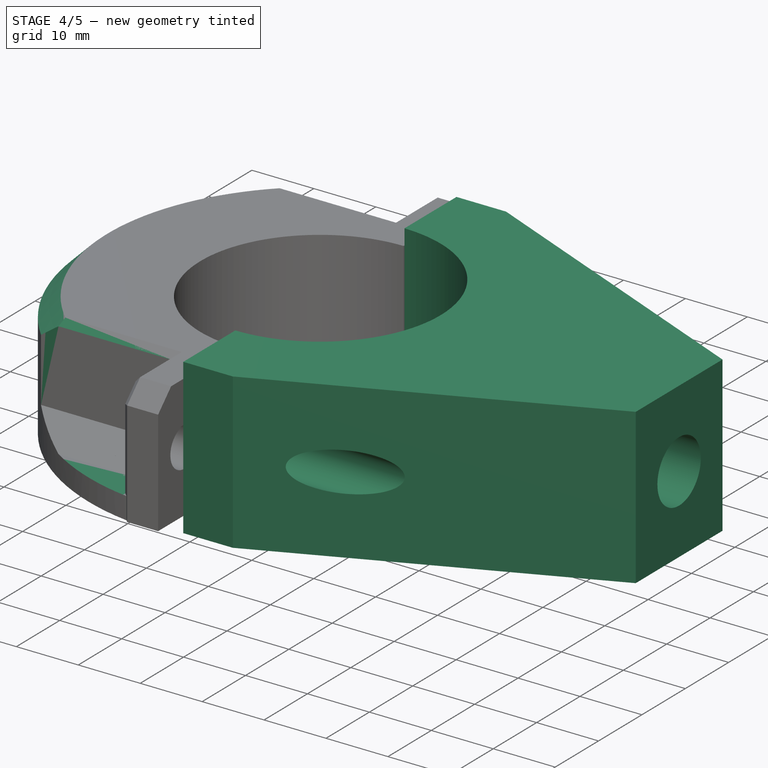
[diagram: stage 4 of 5 — iso view after this stage's code; geometry added in this stage tinted green]
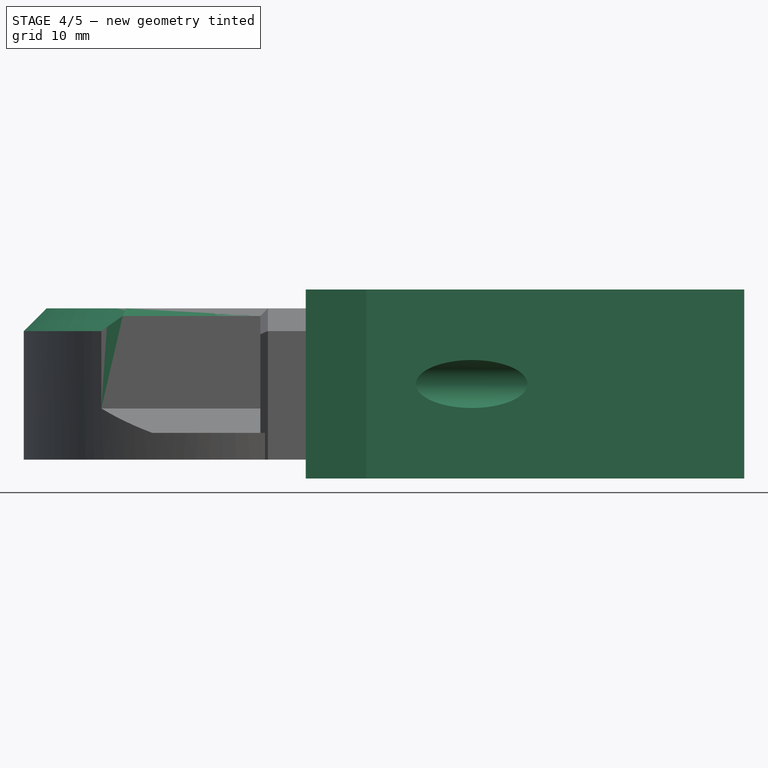
[diagram: stage 4 of 5 — front view after this stage's code; geometry added in this stage tinted green]
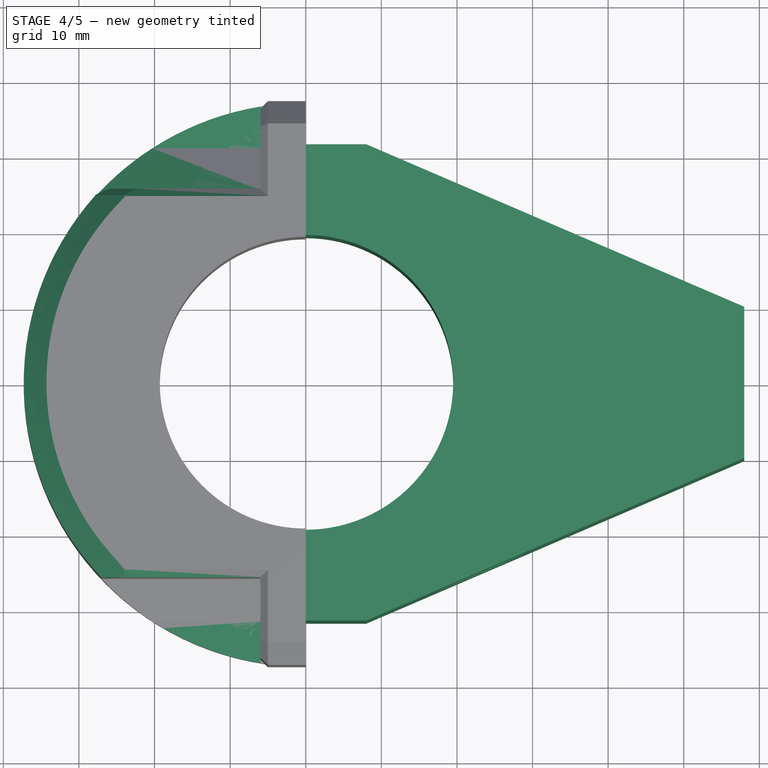
[diagram: stage 4 of 5 — top view after this stage's code; geometry added in this stage tinted green]
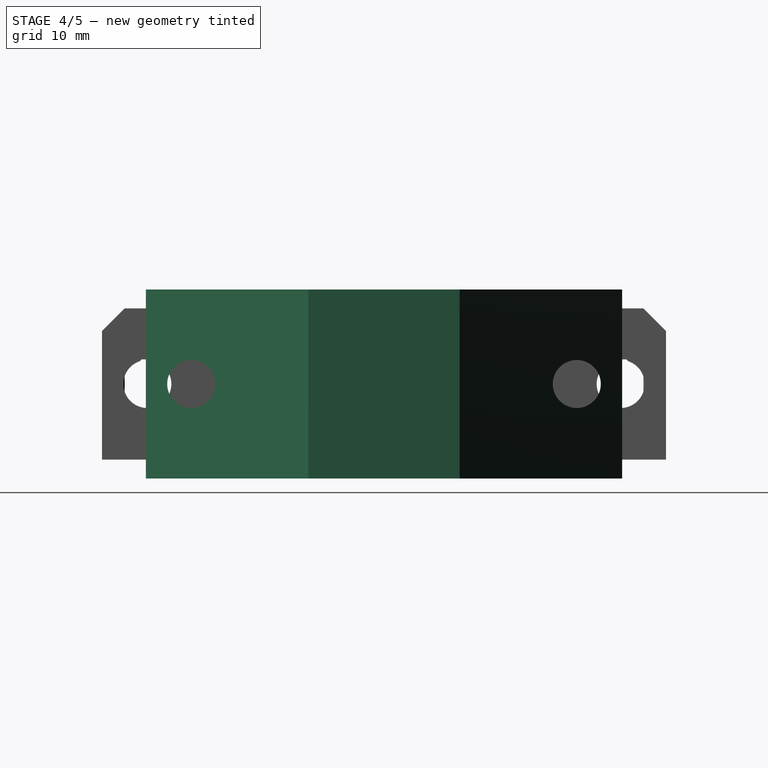
[diagram: stage 4 of 5 — right view after this stage's code; geometry added in this stage tinted green]
FEATURE [PartDesign::Body] Body002  label="indicator"
  Group = -> [Sketch002,Revolution001,Sketch003,Pad001,Boolean]
  Origin = -> Origin002
  Placement = pos=(107,-18.5,0) rot=(0,0,1;0rad)
  Tip = -> Boolean
FEATURE [Sketcher::SketchObject] Sketch004
  FullyConstrained = true
  MapMode = 5
  Support = -> [XY_Plane003]
  sketch-geometry (8):
    g0: ArcOfCircle CenterX=0 CenterY=0 CenterZ=0 NormalX=0 NormalY=0 NormalZ=1 AngleXU=0 Radius=19.5 StartAngle=4.71239 EndAngle=7.85398
    g1: LineSegment StartX=0 StartY=31.5 StartZ=0 EndX=-3.5792e-12 EndY=19.5 EndZ=0
    g2: LineSegment StartX=0 StartY=-19.5 StartZ=0 EndX=0 EndY=-31.5 EndZ=0
    g3: LineSegment StartX=8 StartY=-31.5 StartZ=0 EndX=58 EndY=-10 EndZ=0
    g4: LineSegment StartX=58 StartY=-10 StartZ=0 EndX=58 EndY=10 EndZ=0
    g5: LineSegment StartX=58 StartY=10 StartZ=0 EndX=8 EndY=31.5 EndZ=0
    g6: LineSegment StartX=0 StartY=31.5 StartZ=0 EndX=8 EndY=31.5 EndZ=0
    g7: LineSegment StartX=0 StartY=-31.5 StartZ=0 EndX=8 EndY=-31.5 EndZ=0
  constraints (23):
    c: Coincident(g0,g-1)
    c: PointOnObject(g0,g-2)
    c: PointOnObject(g0,g-2)
    c: PointOnObject(g1,g-2)
    c: PointOnObject(g2,g-2)
    c: Diameter(g0) = 39
    c: Coincident(g1,g0)
    c: Coincident(g2,g0)
    c: DistanceY(g1,g1) = 12
    c: Coincident(g4,g3)
    c: Coincident(g5,g4)
    c: Symmetric(g4,g3,g-1)
    c: DistanceY(g4,g4) = 20
    c: Equal(g1,g2)
    c: Coincident(g6,g1)
    c: Coincident(g6,g5)
    c: Coincident(g7,g2)
    c: Coincident(g7,g3)
    c: Horizontal(g7)
    c: Horizontal(g6)
    c: Equal(g6,g7)
    c: DistanceX(g6,g6) = 8
    c: DistanceX(g0,g3) = 58
FEATURE [PartDesign::Pad] Pad002
  Direction = (0,0,1)
  Length = 25
  Length2 = 10
  Midplane = true
  Profile = -> Sketch004
  ReferenceAxis = -> Sketch004 [N_Axis]
  Type = 0
FEATURE [Sketcher::SketchObject] Sketch005
  ExternalGeometry = -> [Pad002]
  FullyConstrained = true
  MapMode = 5
  Placement = pos=(0,0,-12.5) rot=(1,0,0;3.14159rad)
  Support = -> [Pad002]
  sketch-geometry (10):
    g0: LineSegment StartX=44.1799 StartY=0 StartZ=0 EndX=44.1799 EndY=10.5 EndZ=0
    g1: LineSegment StartX=44.1799 StartY=10.5 StartZ=0 EndX=30.5 EndY=16.3823 EndZ=0
    g2: LineSegment StartX=25.5 StartY=16.3823 StartZ=0 EndX=25.5 EndY=0 EndZ=0
    g3: LineSegment StartX=25.5 StartY=0 StartZ=0 EndX=44.1799 EndY=0 EndZ=0
    g4: LineSegment StartX=44.1799 StartY=10.5 StartZ=0 EndX=46.155 EndY=15.0933 EndZ=0
    g5: LineSegment StartX=19.5 StartY=0 StartZ=0 EndX=19.5 EndY=18.5323 EndZ=0
    g6: LineSegment StartX=25.5 StartY=18.5323 StartZ=0 EndX=19.5 EndY=18.5323 EndZ=0
    g7: LineSegment StartX=25.5 StartY=16.3823 StartZ=0 EndX=30.5 EndY=16.3823 EndZ=0
    g8: LineSegment StartX=25.5 StartY=16.3823 StartZ=0 EndX=25.5 EndY=18.5323 EndZ=0
    g9: LineSegment StartX=25.5 StartY=18.5323 StartZ=0 EndX=30.5 EndY=16.3823 EndZ=0
  constraints (29):
    c: PointOnObject(g0,g-1)
    c: Vertical(g0)
    c: Coincident(g1,g0)
    c: PointOnObject(g2,g-1)
    c: Vertical(g2)
    c: Coincident(g3,g2)
    c: Coincident(g3,g0)
    c: Parallel(g1,g-4)
    c: Coincident(g4,g0)
    c: PointOnObject(g4,g-4)
    c: Perpendicular(g4,g1)
    c: Distance(g4) = 5
    c: PointOnObject(g5,g-5)
    c: Vertical(g5)
    c: Coincident(g6,g5)
    c: Horizontal(g6)
    c: DistanceX(g6,g6) = 6
    c: PointOnObject(g5,g-1)
    c: DistanceY(g0,g0) = 10.5
    c: Horizontal(g7)
    c: Coincident(g1,g7)
    c: Coincident(g2,g7)
    c: Coincident(g8,g2)
    c: Coincident(g8,g6)
    c: Vertical(g8)
    c: Coincident(g9,g6)
    c: Coincident(g9,g1)
    c: Parallel(g9,g1)
    c: DistanceX(g7,g7) = 5
FEATURE [PartDesign::Pocket] Pocket
  BaseFeature = -> Pad002
  Direction = (0,0,1)
  Length = 0
  Length2 = 5
  Offset = -2
  Profile = -> Sketch005
  ReferenceAxis = -> Sketch005 [N_Axis]
  Type = 3
  UpToFace = -> Pad002 [Face10]
FEATURE [PartDesign::Mirrored] Mirrored
  BaseFeature = -> Pocket
  MirrorPlane = -> Sketch005 [H_Axis]
  Originals = -> [Pocket]
FEATURE [Sketcher::SketchObject] Sketch006
  FullyConstrained = true
  MapMode = 5
  Placement = pos=(58,0,0) rot=(0.57735,0.57735,0.57735;2.0944rad)
  Support = -> [Mirrored]
  sketch-geometry (1):
    g0: Circle CenterX=0 CenterY=0 CenterZ=0 NormalX=0 NormalY=0 NormalZ=1 AngleXU=0 Radius=5
  constraints (2):
    c: Coincident(g0,g-1)
    c: Diameter(g0) = 10
FEATURE [PartDesign::Pocket] Pocket001
  BaseFeature = -> Mirrored
  Direction = (-1,0,0)
  Length = 5
  Length2 = 5
  Profile = -> Sketch006
  ReferenceAxis = -> Sketch006 [N_Axis]
  Type = 2
FEATURE [Sketcher::SketchObject] Sketch007
  ExternalGeometry = -> [Pocket001]
  FullyConstrained = true
  MapMode = 5
  Placement = pos=(0,0,0) rot=(0.57735,-0.57735,-0.57735;2.0944rad)
  Support = -> [Pocket001]
  sketch-geometry (3):
    g0: Circle CenterX=25.5 CenterY=0 CenterZ=0 NormalX=0 NormalY=0 NormalZ=1 AngleXU=0 Radius=3.175
    g1: LineSegment StartX=25.5 StartY=0 StartZ=0 EndX=19.5 EndY=0 EndZ=0
    g2: LineSegment StartX=25.5 StartY=0 StartZ=0 EndX=31.5 EndY=0 EndZ=0
  constraints (9):
    c: Diameter(g0) = 6.35
    c: PointOnObject(g0,g-1)
    c: Coincident(g1,g0)
    c: Coincident(g2,g0)
    c: PointOnObject(g1,g-4)
    c: PointOnObject(g2,g-3)
    c: Equal(g1,g2)
    c: Horizontal(g2)
    c: Horizontal(g1)
FEATURE [PartDesign::Pocket] Pocket002
  BaseFeature = -> Pocket001
  Direction = (1,0,0)
  Length = 5
  Length2 = 5
  Profile = -> Sketch007
  ReferenceAxis = -> Sketch007 [N_Axis]
  Type = 1
FEATURE [PartDesign::Mirrored] Mirrored001
  BaseFeature = -> Pocket002
  MirrorPlane = -> Sketch007 [V_Axis]
  Originals = -> [Pocket002]
FEATURE [PartDesign::Mirrored] Mirrored015
  BaseFeature = -> Pocket015
  MirrorPlane = -> Sketch025 [V_Axis]
  Originals = -> [Pocket015]
  Refine = true
FEATURE [PartDesign::Chamfer] Chamfer005
  Angle = 45
  Base = -> Mirrored015 [Edge11]
  BaseFeature = -> Mirrored015
  ChamferType = 0
  FlipDirection = false
  Refine = true
  Size = 3
  Size2 = 1
  SupportTransform = false
  UseAllEdges = false
FEATURE [Sketcher::SketchObject] Sketch026
  ExternalGeometry = -> [Chamfer005]
  FullyConstrained = true
  MapMode = 5
  Placement = pos=(-38,8.4e-15,-8.4e-15) rot=(-0.57735,0.57735,0.57735;4.18879rad)
  Support = -> [DatumPlane001]
  sketch-geometry (4):
    g0: LineSegment StartX=25.7 StartY=-3.23316 StartZ=0 EndX=37.3 EndY=-3.23316 EndZ=0
    g1: LineSegment StartX=25.7 StartY=-3.23316 StartZ=0 EndX=25.7 EndY=10 EndZ=0
    g2: LineSegment StartX=25.7 StartY=10 StartZ=0 EndX=37.3 EndY=10 EndZ=0
    g3: LineSegment StartX=37.3 StartY=10 StartZ=0 EndX=37.3 EndY=-3.23316 EndZ=0
  constraints (11):
    c: Coincident(g0,g-4)
    c: PointOnObject(g0,g-3)
    c: Horizontal(g0)
    c: Coincident(g1,g0)
    c: Vertical(g1)
    c: Coincident(g2,g1)
    c: Horizontal(g2)
    c: Coincident(g3,g2)
    c: Coincident(g3,g0)
    c: Vertical(g3)
    c: PointOnObject(g1,g-5)
FEATURE [PartDesign::Pocket] Pocket016
  BaseFeature = -> Chamfer005
  Direction = (1,-1e-16,1e-16)
  Length = 0
  Length2 = 5
  Profile = -> Sketch026
  ReferenceAxis = -> Sketch026 [N_Axis]
  Refine = true
  Type = 3
  UpToFace = -> Chamfer005 [Face16]
FEATURE [PartDesign::Mirrored] Mirrored016
  BaseFeature = -> Pocket016
  MirrorPlane = -> Sketch026 [V_Axis]
  Originals = -> [Pocket016]
  Refine = true
FEATURE [Sketcher::SketchObject] Sketch027
  ExternalGeometry = -> [Mirrored016]
  FullyConstrained = true
  MapMode = 5
  Placement = pos=(-38,8.4e-15,-8.4e-15) rot=(-0.57735,0.57735,0.57735;4.18879rad)
  Support = -> [DatumPlane001]
  sketch-geometry (4):
    g0: LineSegment StartX=31.3 StartY=-6.46632 StartZ=0 EndX=37.3 EndY=-6.46632 EndZ=0
    g1: LineSegment StartX=37.3 StartY=-6.46632 StartZ=0 EndX=37.3 EndY=-3.28266 EndZ=0
    g2: LineSegment StartX=37.3 StartY=-3.28266 StartZ=0 EndX=31.3 EndY=-3.28266 EndZ=0
    g3: LineSegment StartX=31.3 StartY=-3.28266 StartZ=0 EndX=31.3 EndY=-6.46632 EndZ=0
  constraints (11):
    c: Coincident(g0,g1)
    c: Coincident(g1,g2)
    c: Coincident(g2,g3)
    c: Coincident(g3,g0)
    c: Horizontal(g0)
    c: Horizontal(g2)
    c: Vertical(g1)
    c: Vertical(g3)
    c: Coincident(g0,g-4)
    c: PointOnObject(g1,g-3)
    c: PointOnObject(g-4,g2)
FEATURE [PartDesign::Pocket] Pocket017
  BaseFeature = -> Mirrored016
  Direction = (1,-1e-16,1e-16)
  Length = 0
  Length2 = 5
  Profile = -> Sketch027
  ReferenceAxis = -> Sketch027 [N_Axis]
  Refine = true
  Type = 3
  UpToFace = -> Mirrored016 [Face22]
FEATURE [PartDesign::Mirrored] Mirrored017
  BaseFeature = -> Pocket017
  MirrorPlane = -> Sketch027 [V_Axis]
  Originals = -> [Pocket017]
  Refine = true
FEATURE [PartDesign::Chamfer] Chamfer006
  Angle = 45
  Base = -> Mirrored017 [Edge32,Edge31,Edge51,Edge14,Edge19,Edge58,Edge34,Edge35,Edge25,Edge22]
  BaseFeature = -> Mirrored017
  ChamferType = 0
  FlipDirection = false
  Refine = true
  Size = 1
  Size2 = 1
  SupportTransform = false
  UseAllEdges = false
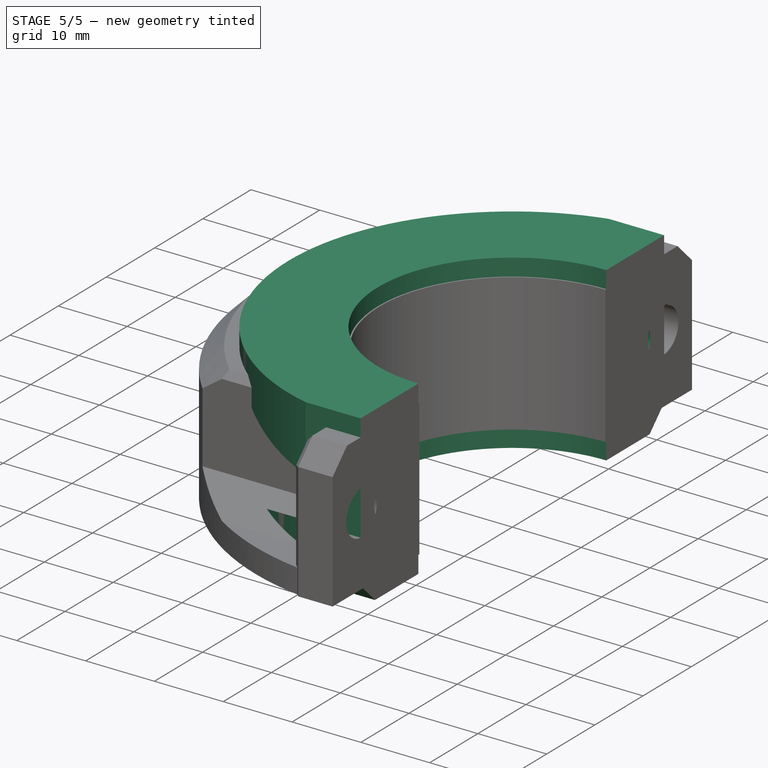
[diagram: stage 5 of 5 — iso view after this stage's code; geometry added in this stage tinted green]
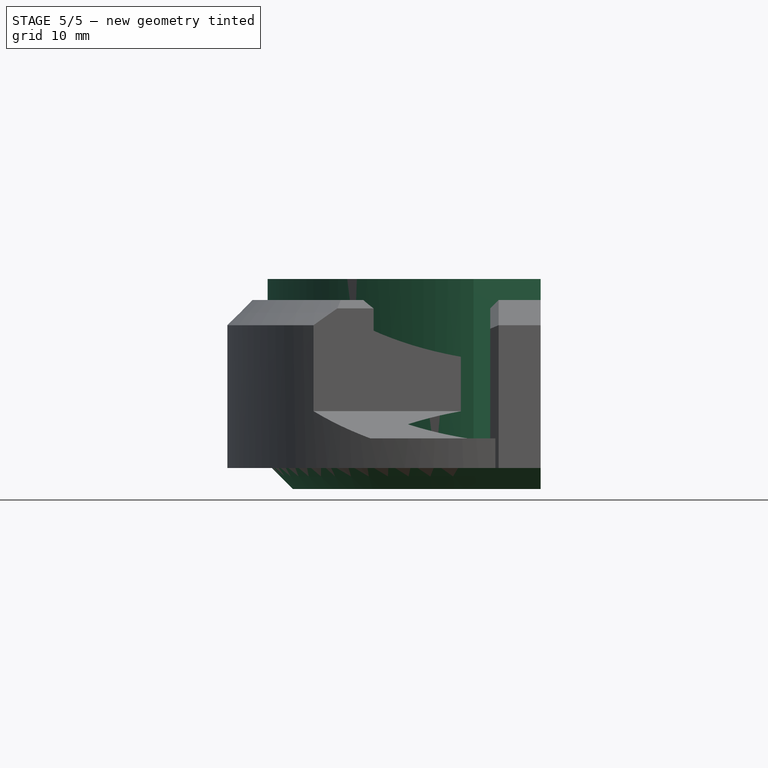
[diagram: stage 5 of 5 — front view after this stage's code; geometry added in this stage tinted green]
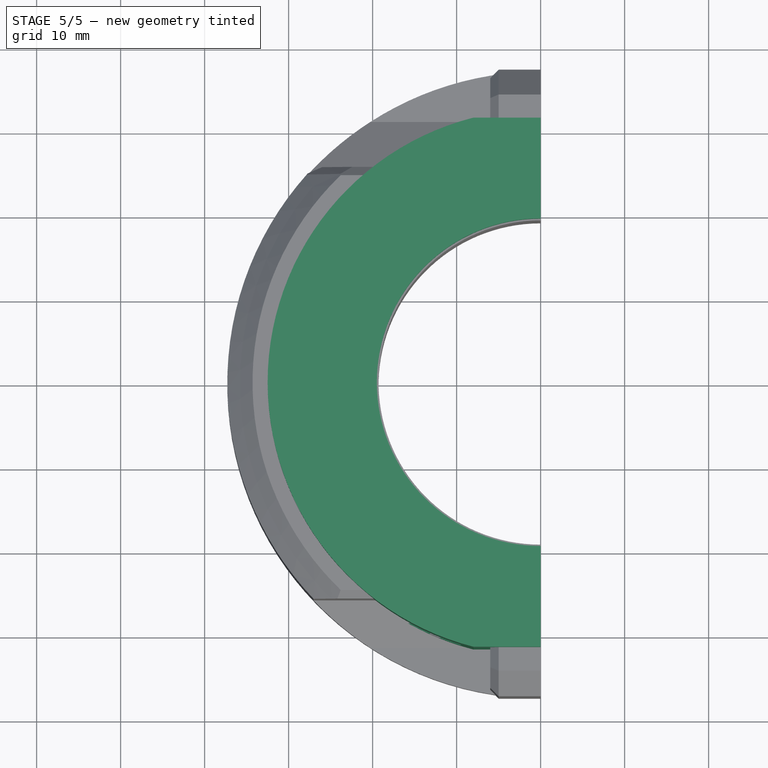
[diagram: stage 5 of 5 — top view after this stage's code; geometry added in this stage tinted green]
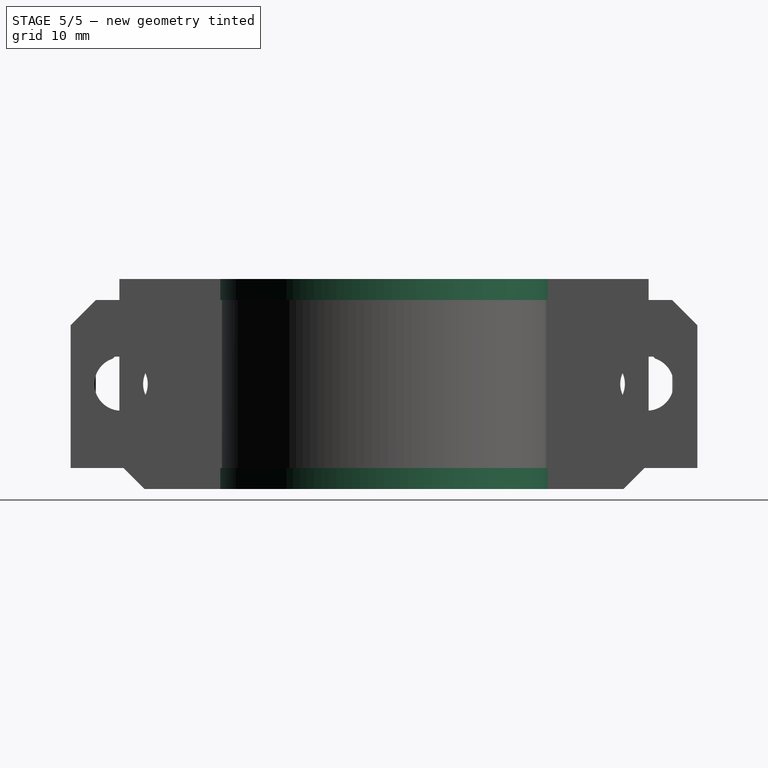
[diagram: stage 5 of 5 — right view after this stage's code; geometry added in this stage tinted green]
FEATURE [Sketcher::SketchObject] Sketch008
  ExternalGeometry = -> [Mirrored001]
  FullyConstrained = true
  MapMode = 5
  Placement = pos=(58,0,0) rot=(0.57735,0.57735,0.57735;2.0944rad)
  Support = -> [Mirrored001]
  sketch-geometry (6):
    g0: ArcOfCircle CenterX=-25.5 CenterY=0 CenterZ=0 NormalX=0 NormalY=0 NormalZ=1 AngleXU=0 Radius=6 StartAngle=0 EndAngle=1.5708
    g1: LineSegment StartX=-25.5 StartY=6 StartZ=0 EndX=-31.5 EndY=6 EndZ=0
    g2: LineSegment StartX=-31.5 StartY=6 StartZ=0 EndX=-31.5 EndY=-12.5 EndZ=0
    g3: LineSegment StartX=-31.5 StartY=-12.5 StartZ=0 EndX=-19.5 EndY=-12.5 EndZ=0
    g4: LineSegment StartX=-19.5 StartY=-12.5 StartZ=0 EndX=-19.5 EndY=0 EndZ=0
    g5: LineSegment StartX=-25.5 StartY=6 StartZ=0 EndX=-25.5 EndY=0 EndZ=0
  constraints (16):
    c: Coincident(g0,g-3)
    c: Diameter(g0) = 12
    c: PointOnObject(g1,g-4)
    c: Coincident(g2,g1)
    c: Coincident(g3,g2)
    c: Coincident(g4,g3)
    c: Coincident(g5,g1)
    c: Coincident(g5,g0)
    c: Vertical(g5)
    c: PointOnObject(g4,g-1)
    c: Horizontal(g1)
    c: Vertical(g4)
    c: PointOnObject(g3,g-5)
    c: Coincident(g2,g-5)
    c: Coincident(g0,g1)
    c: Coincident(g0,g4)
FEATURE [PartDesign::Pocket] Pocket003
  BaseFeature = -> Mirrored001
  Direction = (-1,0,0)
  Length = 0
  Length2 = 5
  Offset = -8
  Profile = -> Sketch008
  ReferenceAxis = -> Sketch008 [N_Axis]
  Type = 3
  UpToFace = -> Mirrored001 [Face1]
FEATURE [PartDesign::Mirrored] Mirrored002
  BaseFeature = -> Pocket003
  MirrorPlane = -> Sketch008 [V_Axis]
  Originals = -> [Pocket003]
FEATURE [Sketcher::SketchObject] Sketch009
  ExternalGeometry = -> [Mirrored002]
  FullyConstrained = true
  MapMode = 5
  Placement = pos=(0,0,0) rot=(0.57735,-0.57735,-0.57735;2.0944rad)
  Support = -> [Mirrored002]
  sketch-geometry (4):
    g0: LineSegment StartX=24.25 StartY=-2.91858 StartZ=0 EndX=24.65 EndY=-3.31858 EndZ=0
    g1: LineSegment StartX=24.65 StartY=-3.31858 StartZ=0 EndX=26.35 EndY=-3.31858 EndZ=0
    g2: LineSegment StartX=26.35 StartY=-3.31858 StartZ=0 EndX=26.75 EndY=-2.91858 EndZ=0
    g3: LineSegment StartX=26.75 StartY=-2.91858 StartZ=0 EndX=24.25 EndY=-2.91858 EndZ=0
  constraints (12):
    c: PointOnObject(g0,g-3)
    c: Coincident(g1,g0)
    c: Horizontal(g1)
    c: Coincident(g2,g1)
    c: PointOnObject(g2,g-3)
    c: Coincident(g3,g2)
    c: Coincident(g3,g0)
    c: Horizontal(g3)
    c: Equal(g2,g0)
    c: DistanceX(g3,g3) = 2.5
    c: Angle(g3,g2) = 0.785398
    c: DistanceY(g1,g2) = 0.4
FEATURE [PartDesign::Pocket] Pocket004
  BaseFeature = -> Mirrored002
  Direction = (1,0,0)
  Length = 5
  Length2 = 5
  Profile = -> Sketch009
  ReferenceAxis = -> Sketch009 [N_Axis]
  Type = 1
FEATURE [PartDesign::Mirrored] Mirrored003
  BaseFeature = -> Pocket004
  MirrorPlane = -> Sketch009 [V_Axis]
  Originals = -> [Pocket004]
FEATURE [Sketcher::SketchObject] Sketch010
  ExternalGeometry = -> [Mirrored003]
  FullyConstrained = true
  MapMode = 5
  Placement = pos=(58,0,0) rot=(0.57735,0.57735,0.57735;2.0944rad)
  Support = -> [Mirrored003]
  sketch-geometry (4):
    g0: LineSegment StartX=-2 StartY=-4.58258 StartZ=0 EndX=2 EndY=-4.58258 EndZ=0
    g1: LineSegment StartX=-2 StartY=-4.58258 StartZ=0 EndX=-1.2 EndY=-5.38258 EndZ=0
    g2: LineSegment StartX=-1.2 StartY=-5.38258 StartZ=0 EndX=1.2 EndY=-5.38258 EndZ=0
    g3: LineSegment StartX=1.2 StartY=-5.38258 StartZ=0 EndX=2 EndY=-4.58258 EndZ=0
  constraints (12):
    c: PointOnObject(g0,g-3)
    c: PointOnObject(g0,g-3)
    c: Horizontal(g0)
    c: Coincident(g1,g0)
    c: Coincident(g2,g1)
    c: Horizontal(g2)
    c: Coincident(g3,g2)
    c: Coincident(g3,g0)
    c: Equal(g3,g1)
    c: Angle(g0,g3) = 0.785398
    c: DistanceX(g0,g0) = 4
    c: DistanceY(g2,g0) = 0.8
FEATURE [PartDesign::Pocket] Pocket005
  BaseFeature = -> Mirrored003
  Direction = (-1,0,0)
  Length = 0
  Length2 = 5
  Profile = -> Sketch010
  ReferenceAxis = -> Sketch010 [N_Axis]
  Type = 3
  UpToFace = -> Mirrored003 [Face24]
FEATURE [PartDesign::Chamfer] Chamfer
  Angle = 45
  Base = -> Pocket005 [Edge22,Edge14]
  BaseFeature = -> Pocket005
  ChamferType = 0
  FlipDirection = false
  Size = 3
  Size2 = 1
  SupportTransform = false
  UseAllEdges = false
FEATURE [PartDesign::Chamfer] Chamfer001
  Angle = 45
  Base = -> Chamfer [Edge20,Edge18,Edge31,Edge35,Edge21,Edge19,Edge17,Edge15,Edge14,Edge60,Edge62,Edge79,Edge75]
  BaseFeature = -> Chamfer
  ChamferType = 0
  FlipDirection = false
  Size = 1
  Size2 = 1
  SupportTransform = false
  UseAllEdges = false
FEATURE [PartDesign::Body] Body003  label="fork_mount_1"
  Group = -> [Sketch004,Pad002,Sketch005,Pocket,Mirrored,Sketch006,Pocket001,Sketch007,Pocket002,Mirrored001,Sketch008,Pocket003,Mirrored002,Sketch009,Pocket004,Mirrored003,Sketch010,Pocket005,Chamfer,Chamfer001]
  Origin = -> Origin003
  Tip = -> Chamfer001
FEATURE [PartDesign::ShapeBinder] ShapeBinder
  Placement = pos=(0,0,12.5) rot=(0,0,1;0rad)
  Support = -> [Chamfer001]
  TraceSupport = true
FEATURE [Sketcher::SketchObject] Sketch011
  ExternalGeometry = -> [ShapeBinder]
  FullyConstrained = true
  MapMode = 5
  Support = -> [XY_Plane004]
  sketch-geometry (5):
    g0: ArcOfCircle CenterX=0 CenterY=0 CenterZ=0 NormalX=0 NormalY=0 NormalZ=1 AngleXU=0 Radius=19.5 StartAngle=1.5708 EndAngle=3.14159
    g1: LineSegment StartX=0 StartY=31.5 StartZ=0 EndX=-8 EndY=31.5 EndZ=0
    g2: ArcOfCircle CenterX=0 CenterY=0 CenterZ=0 NormalX=0 NormalY=0 NormalZ=1 AngleXU=0 Radius=32.5 StartAngle=1.81951 EndAngle=3.14159
    g3: LineSegment StartX=-32.5 StartY=4e-15 StartZ=0 EndX=-19.5 EndY=2.4e-15 EndZ=0
    g4: LineSegment StartX=0 StartY=31.5 StartZ=0 EndX=-3.5796e-12 EndY=19.5 EndZ=0
  constraints (13):
    c: Coincident(g0,g-3)
    c: Coincident(g0,g-3)
    c: PointOnObject(g0,g-1)
    c: Coincident(g1,g-4)
    c: Coincident(g2,g0)
    c: Coincident(g2,g1)
    c: PointOnObject(g2,g-1)
    c: Coincident(g3,g2)
    c: Coincident(g3,g0)
    c: Horizontal(g1)
    c: Equal(g-4,g1)
    c: Coincident(g4,g1)
    c: Coincident(g4,g0)
FEATURE [PartDesign::Pad] Pad003
  Direction = (0,0,1)
  Length = 25
  Length2 = 10
  Midplane = true
  Profile = -> Sketch011
  ReferenceAxis = -> Sketch011 [N_Axis]
  Type = 0
FEATURE [PartDesign::Mirrored] Mirrored004
  BaseFeature = -> Pad003
  MirrorPlane = -> Sketch011 [H_Axis]
  Originals = -> [Pad003]
FEATURE [PartDesign::ShapeBinder] ShapeBinder001
  Support = -> [Chamfer001]
  TraceSupport = false
FEATURE [Sketcher::SketchObject] Sketch012
  ExternalGeometry = -> [ShapeBinder001]
  FullyConstrained = true
  MapMode = 5
  Placement = pos=(-9.3965e-12,0,0) rot=(0.57735,0.57735,0.57735;2.0944rad)
  Support = -> [Mirrored004]
  sketch-geometry (5):
    g0: ArcOfCircle CenterX=25.5 CenterY=-5.7e-15 CenterZ=0 NormalX=0 NormalY=0 NormalZ=1 AngleXU=0 Radius=3.175 StartAngle=5.11704 EndAngle=10.5909
    g1: LineSegment StartX=24.25 StartY=-2.91858 StartZ=0 EndX=24.65 EndY=-3.31858 EndZ=0
    g2: LineSegment StartX=24.65 StartY=-3.31858 StartZ=0 EndX=26.35 EndY=-3.31858 EndZ=0
    g3: LineSegment StartX=26.35 StartY=-3.31858 StartZ=0 EndX=26.75 EndY=-2.91858 EndZ=0
    g4: LineSegment StartX=26.75 StartY=-2.91858 StartZ=0 EndX=24.25 EndY=-2.91858 EndZ=0
  constraints (12):
    c: Coincident(g0,g-3)
    c: Coincident(g1,g0)
    c: Coincident(g2,g1)
    c: Horizontal(g2)
    c: Coincident(g3,g2)
    c: Coincident(g3,g0)
    c: Coincident(g4,g0)
    c: Coincident(g4,g0)
    c: Horizontal(g4)
    c: Coincident(g0,g-3)
    c: Equal(g3,g1)
    c: Coincident(g1,g-4)
FEATURE [PartDesign::Pocket] Pocket006
  BaseFeature = -> Mirrored004
  Direction = (-1,2.981e-13,1e-16)
  Length = 5
  Length2 = 5
  Profile = -> Sketch012
  ReferenceAxis = -> Sketch012 [N_Axis]
  Refine = true
  Type = 1
FEATURE [PartDesign::Mirrored] Mirrored005
  BaseFeature = -> Pocket006
  MirrorPlane = -> Sketch012 [V_Axis]
  Originals = -> [Pocket006]
  Refine = true
FEATURE [PartDesign::Plane] DatumPlane
  AttachmentOffset = pos=(0,0,-34) rot=(0,0,1;0rad)
  Length = 74.225
  MapMode = 5
  Placement = pos=(-34,-1.01352e-11,-3.8e-15) rot=(0.57735,0.57735,0.57735;2.0944rad)
  ResizeMode = 0
  Support = -> [Mirrored005]
  Width = 61.225
FEATURE [Sketcher::SketchObject] Sketch013
  ExternalGeometry = -> [Mirrored005]
  FullyConstrained = true
  MapMode = 5
  Placement = pos=(-34,-1.01352e-11,-3.8e-15) rot=(0.57735,-0.57735,-0.57735;2.0944rad)
  Support = -> [DatumPlane]
  sketch-geometry (7):
    g0: LineSegment StartX=-19.9 StartY=3.23316 StartZ=0 EndX=-25.5 EndY=6.46632 EndZ=0
    g1: LineSegment StartX=-25.5 StartY=6.46632 StartZ=0 EndX=-31.1 EndY=3.23316 EndZ=0
    g2: LineSegment StartX=-31.1 StartY=3.23316 StartZ=0 EndX=-31.1 EndY=-3.23316 EndZ=0
    g3: LineSegment StartX=-31.1 StartY=-3.23316 StartZ=0 EndX=-25.5 EndY=-6.46632 EndZ=0
    g4: LineSegment StartX=-25.5 StartY=-6.46632 StartZ=0 EndX=-19.9 EndY=-3.23316 EndZ=0
    g5: LineSegment StartX=-19.9 StartY=-3.23316 StartZ=0 EndX=-19.9 EndY=3.23316 EndZ=0
    g6: Circle CenterX=-25.5 CenterY=-2.8e-15 CenterZ=0 NormalX=0 NormalY=0 NormalZ=1 AngleXU=0 Radius=6.46632
  constraints (16):
    c: Coincident(g0,g1)
    c: Coincident(g1,g2)
    c: Coincident(g2,g3)
    c: Coincident(g3,g4)
    c: Coincident(g4,g5)
    c: Coincident(g5,g0)
    c: Equal(g0, g1-g5) x5
    c: PointOnObject(g0,g6)
    c: PointOnObject(g1,g6)
    c: PointOnObject(g2,g6)
    c: PointOnObject(g3,g6)
    c: PointOnObject(g4,g6)
    c: PointOnObject(g5,g6)
    c: Coincident(g6,g-3)
    c: Vertical(g5)
    c: DistanceX(g1,g0) = 11.2
FEATURE [PartDesign::Pocket] Pocket007
  BaseFeature = -> Mirrored005
  Direction = (1,2.983e-13,1e-16)
  Length = 24.5
  Length2 = 5
  Profile = -> Sketch013
  ReferenceAxis = -> Sketch013 [N_Axis]
  Refine = true
  Type = 0
FEATURE [PartDesign::Mirrored] Mirrored006
  BaseFeature = -> Pocket007
  MirrorPlane = -> Sketch013 [V_Axis]
  Originals = -> [Pocket007]
  Refine = true
FEATURE [PartDesign::Chamfer] Chamfer002
  Angle = 45
  Base = -> Mirrored006 [Edge15,Edge16,Edge17,Edge10]
  BaseFeature = -> Mirrored006
  ChamferType = 0
  FlipDirection = false
  Refine = true
  Size = 3
  Size2 = 1
  SupportTransform = false
  UseAllEdges = false
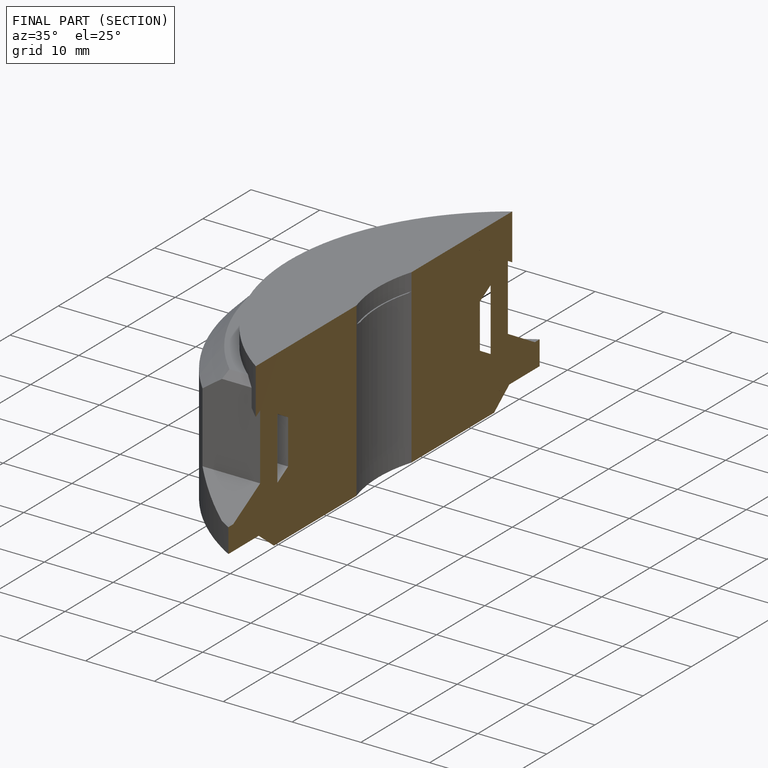
[diagram: finished part — half-section view (interior)]
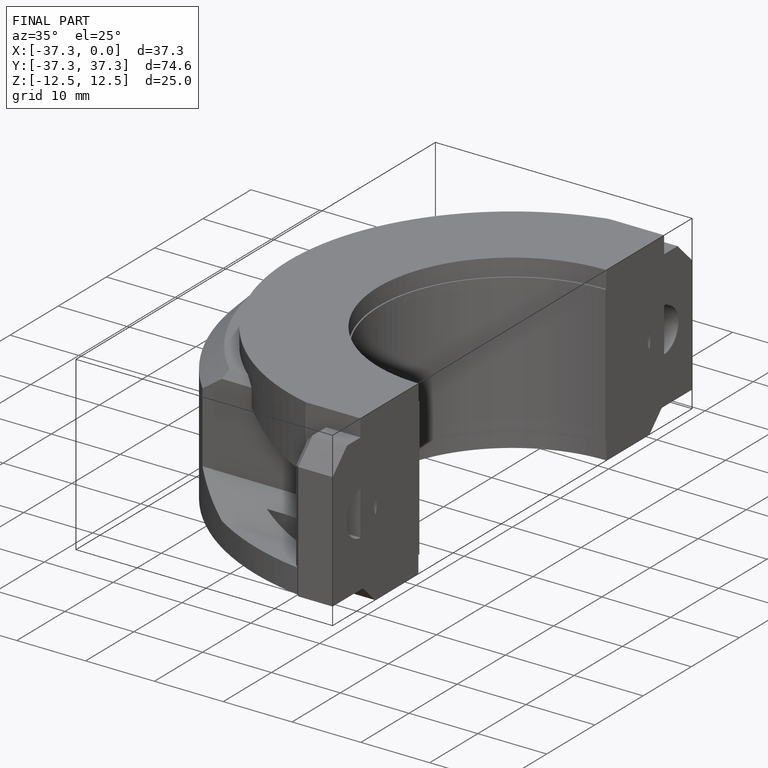
[diagram: finished part — iso view with bounding-box wireframe]
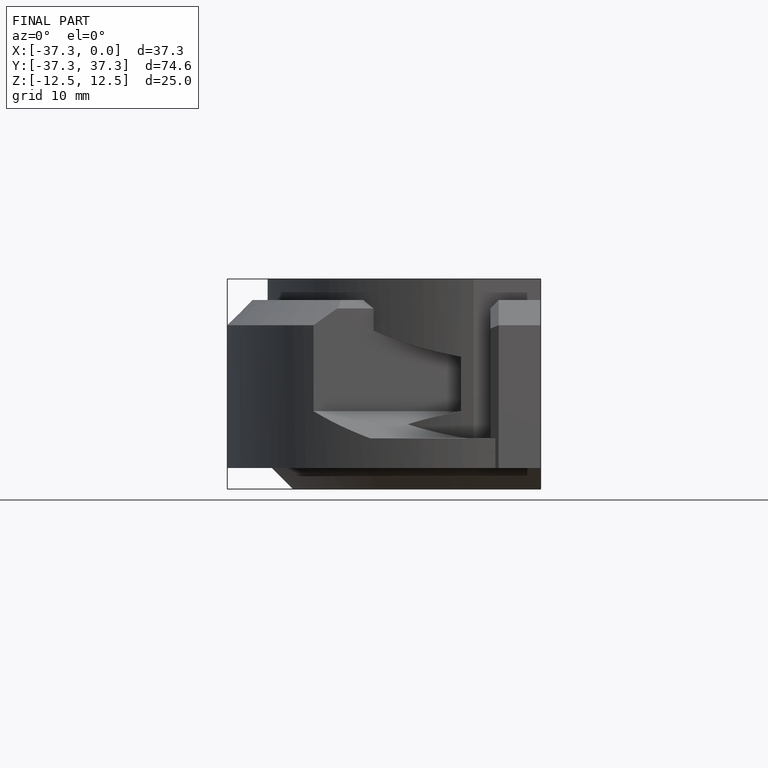
[diagram: finished part — front view with bounding-box wireframe]
